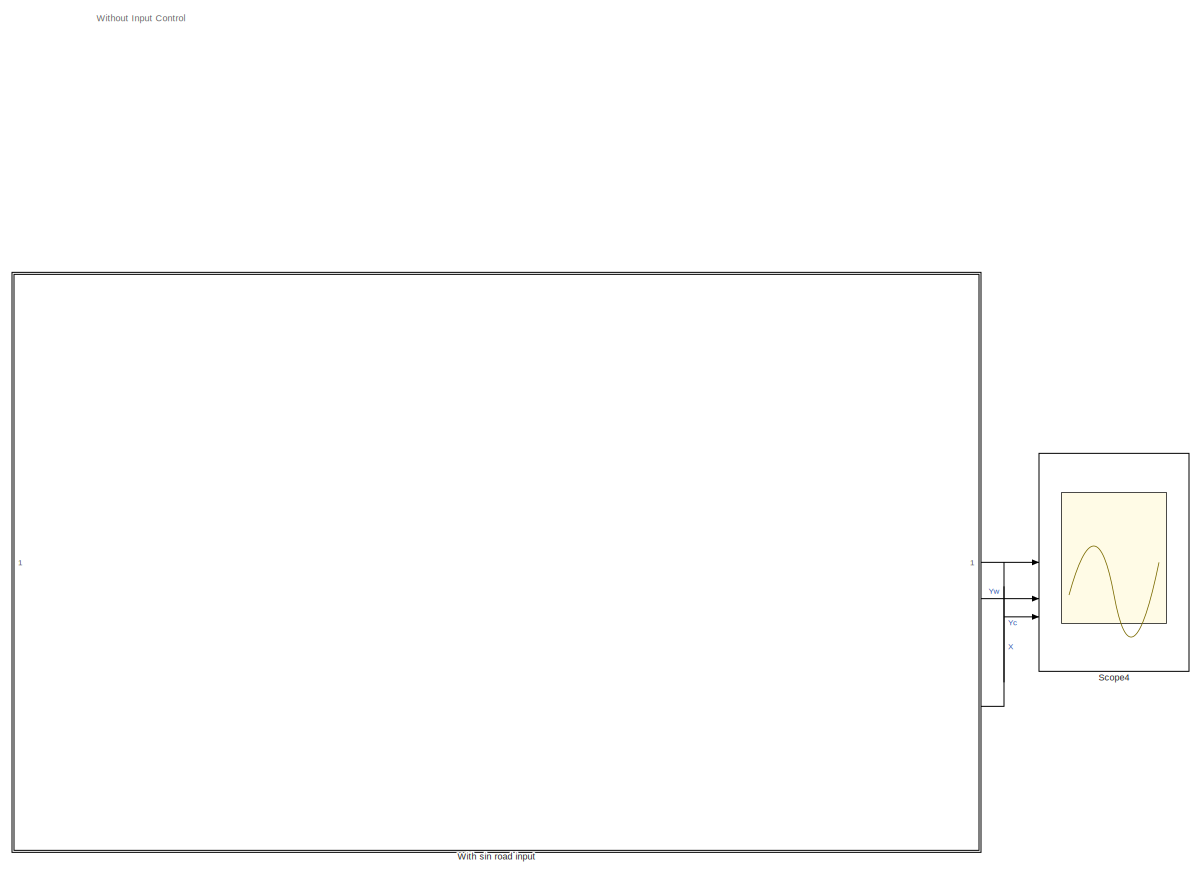
[diagram: root canvas - part 1/13, top center region]
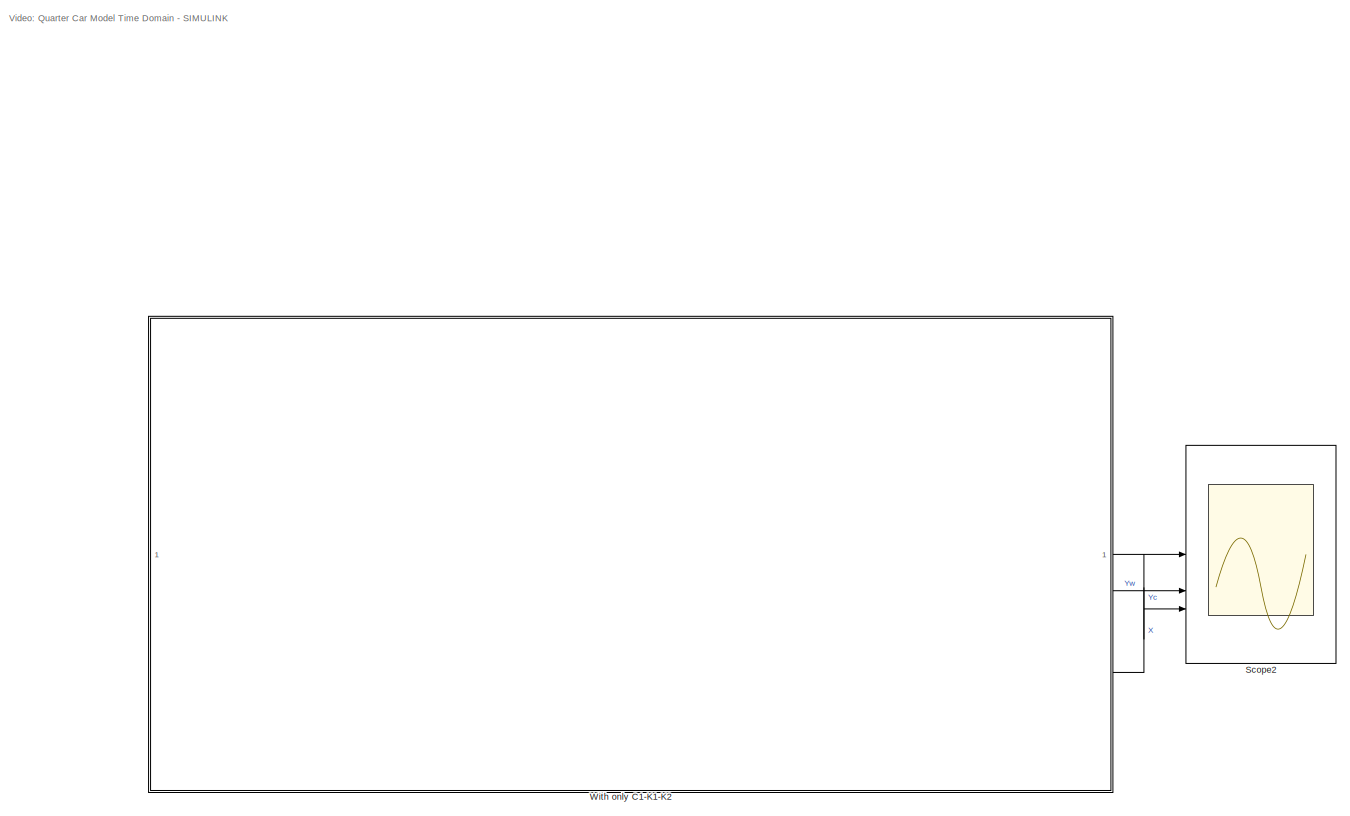
[diagram: root canvas - part 2/13, top left region]
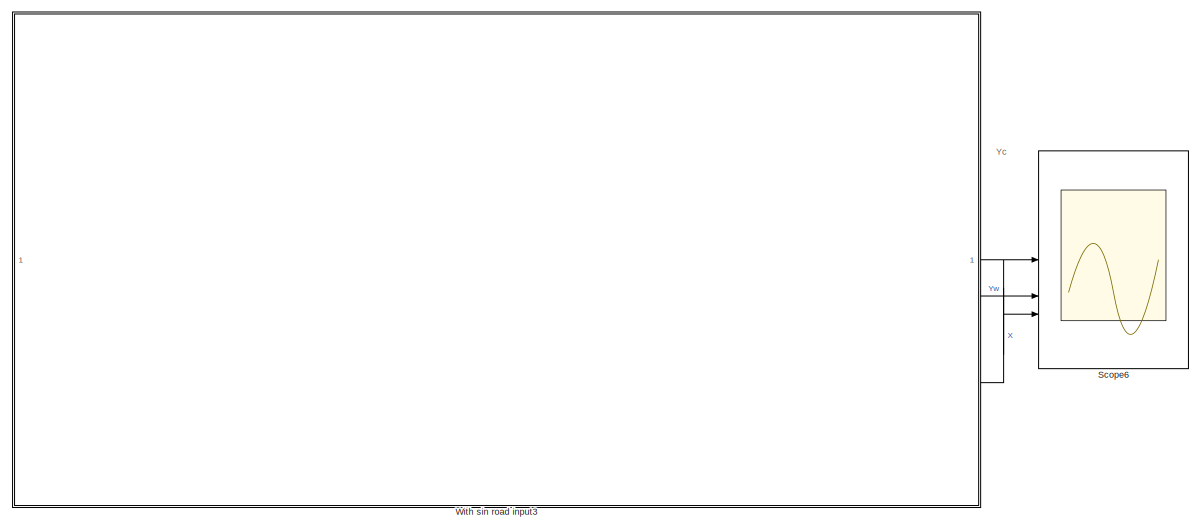
[diagram: root canvas - part 3/13, top right region]
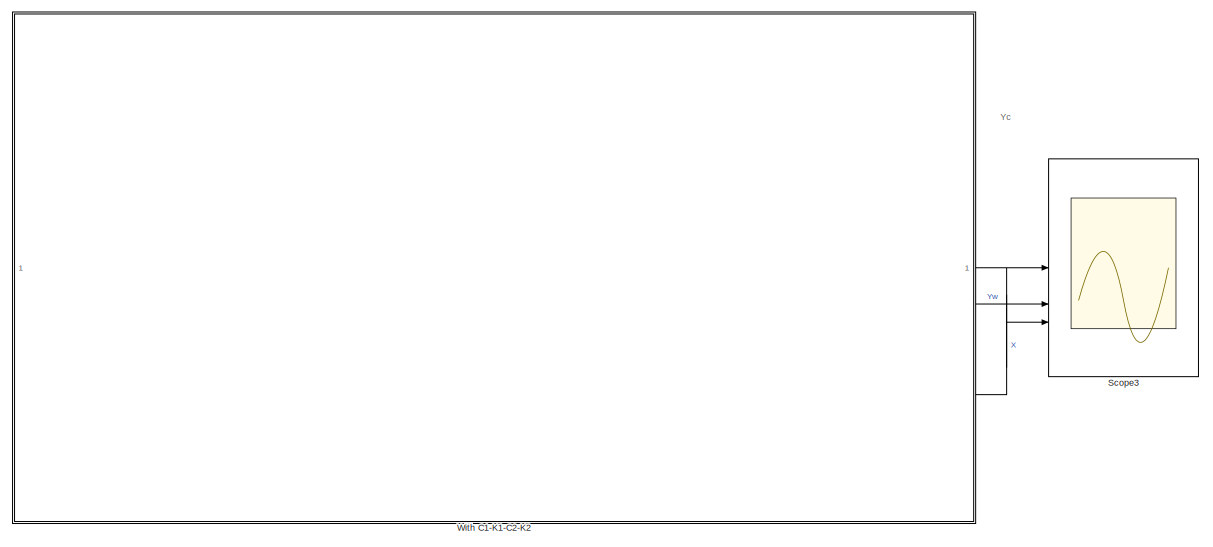
[diagram: root canvas - part 4/13, middle left region]
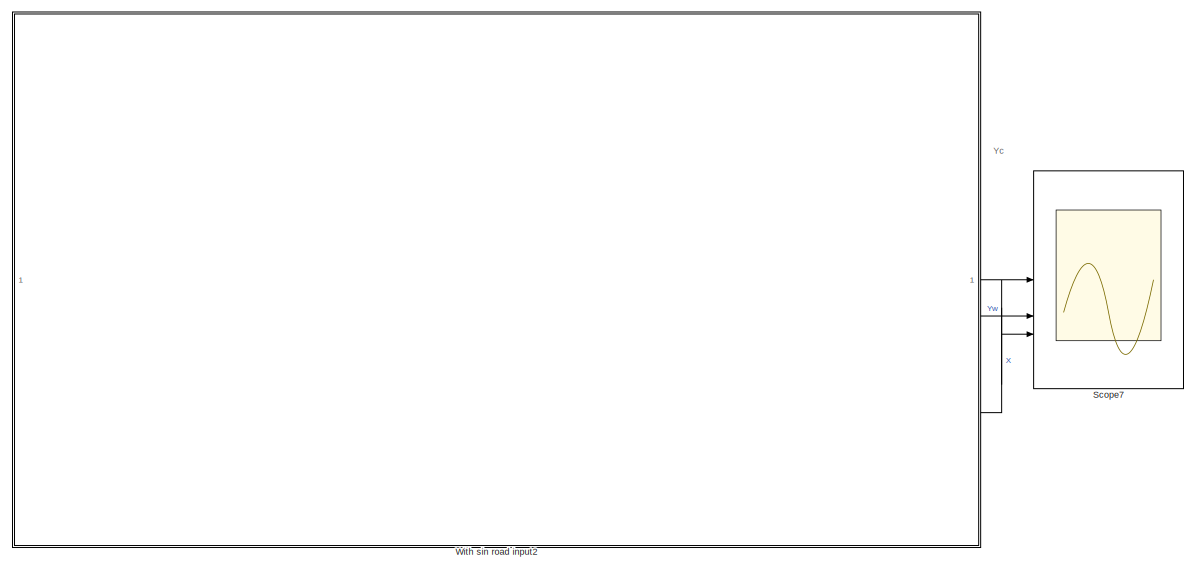
[diagram: root canvas - part 5/13, middle right region]
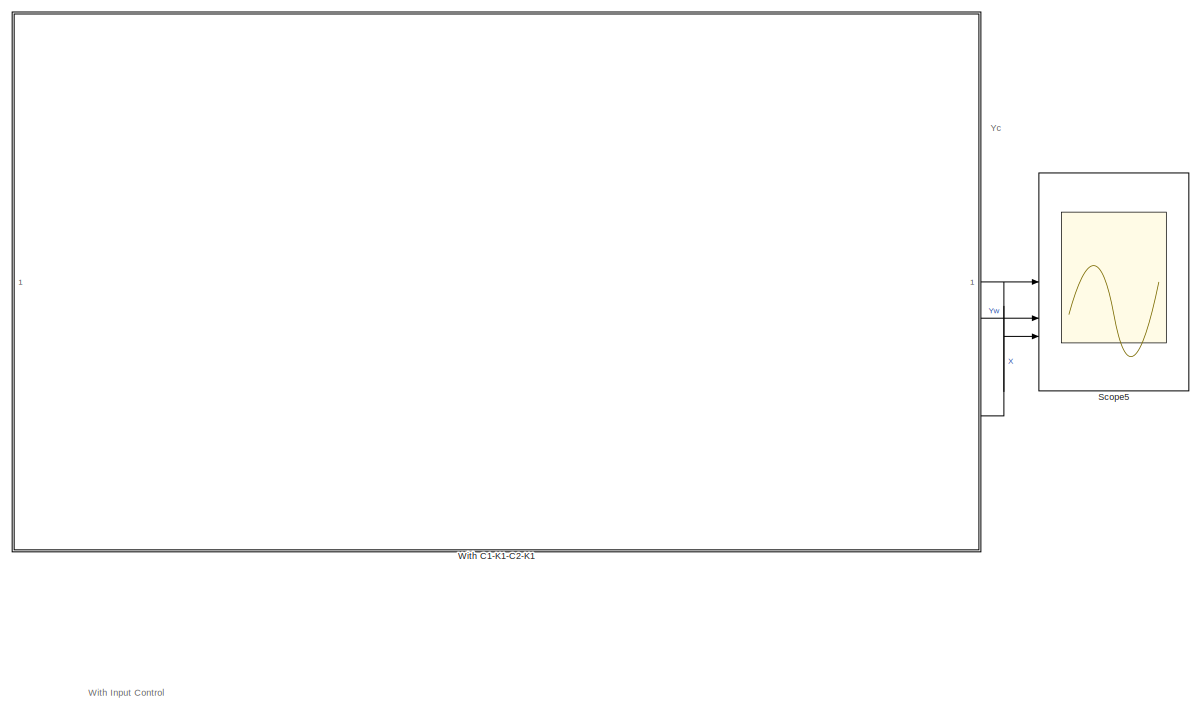
[diagram: root canvas - part 6/13, central region]
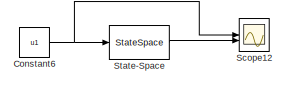
[diagram: root canvas - part 7/13, middle right region]
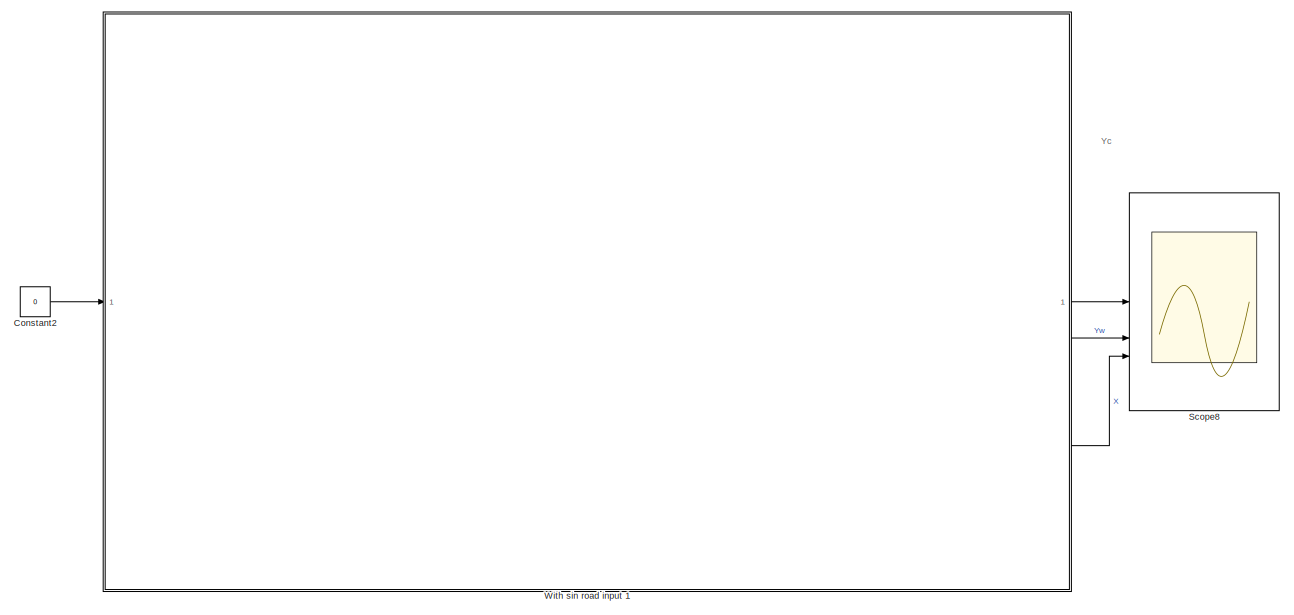
[diagram: root canvas - part 8/13, bottom center region]
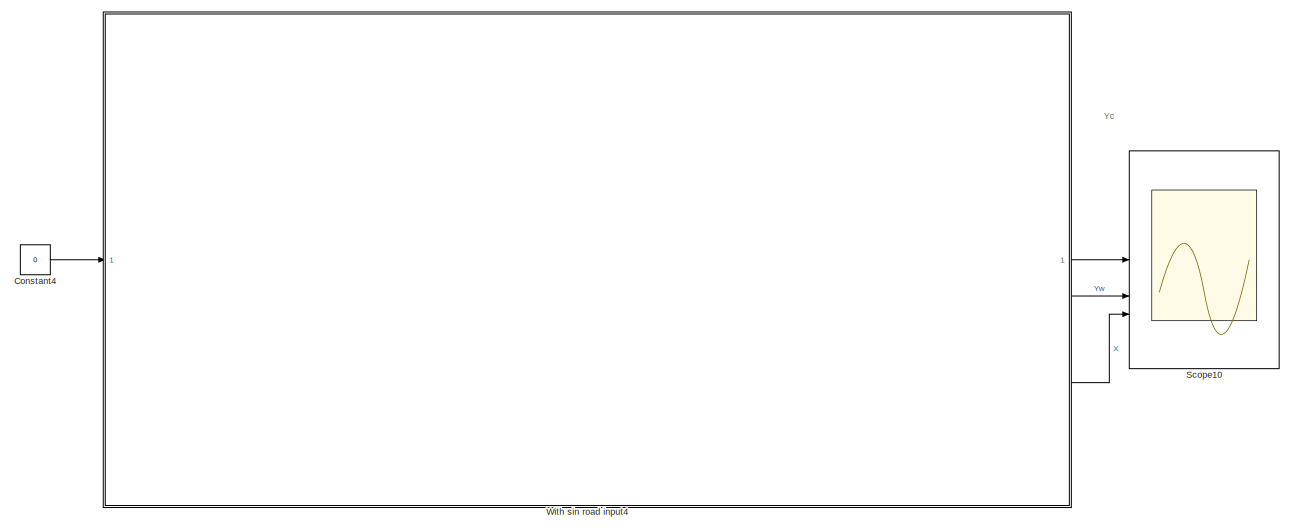
[diagram: root canvas - part 9/13, bottom right region]
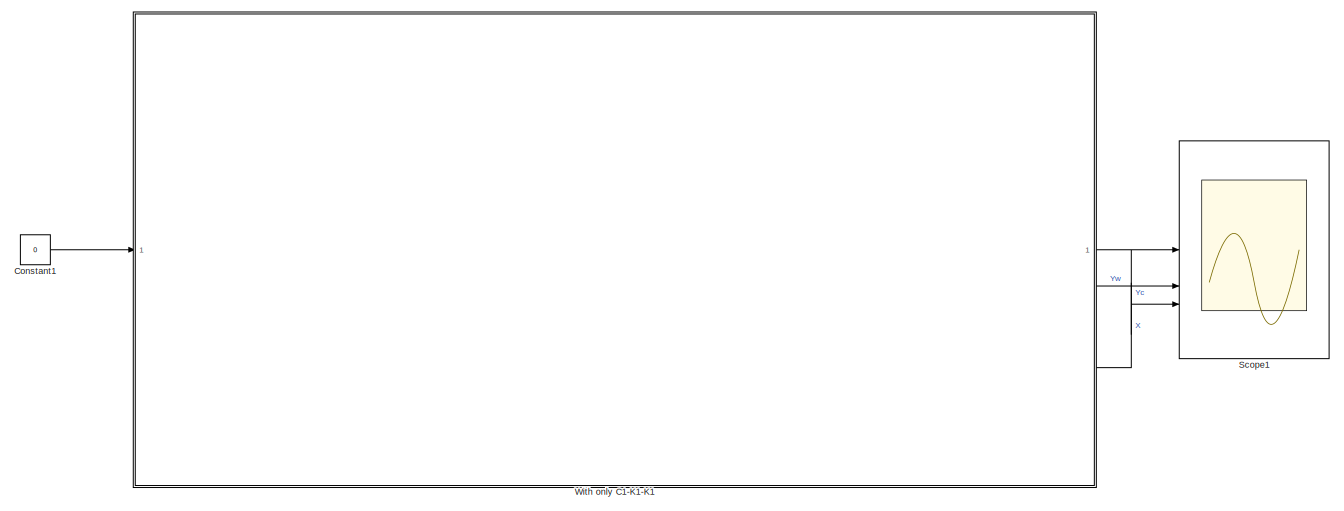
[diagram: root canvas - part 10/13, bottom left region]
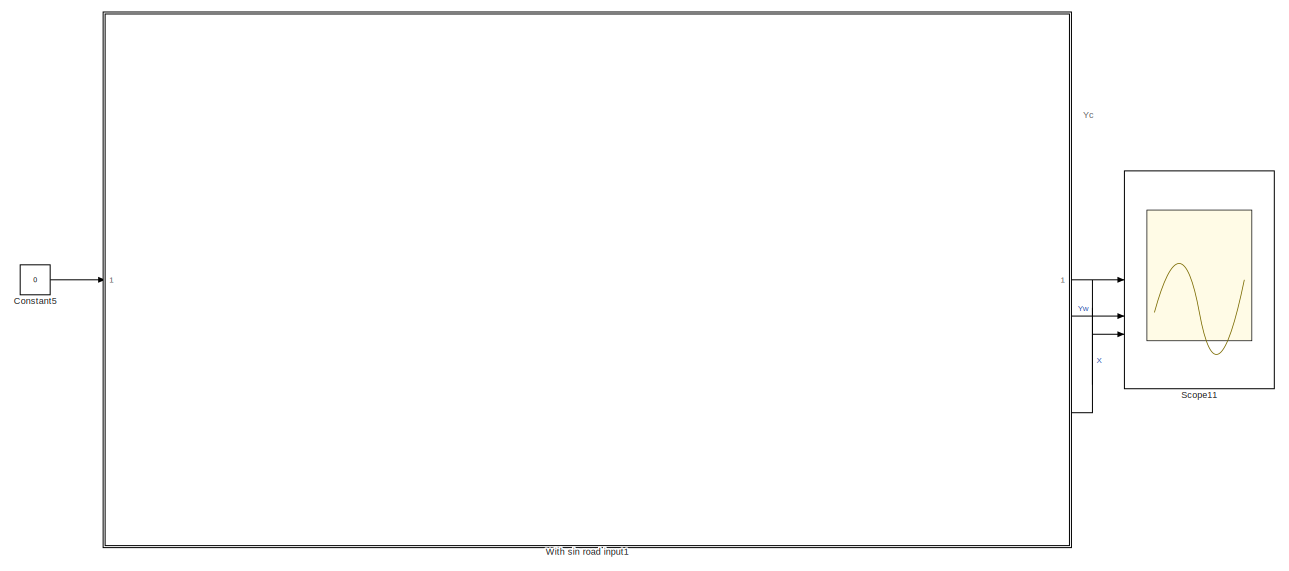
[diagram: root canvas - part 11/13, bottom right region]
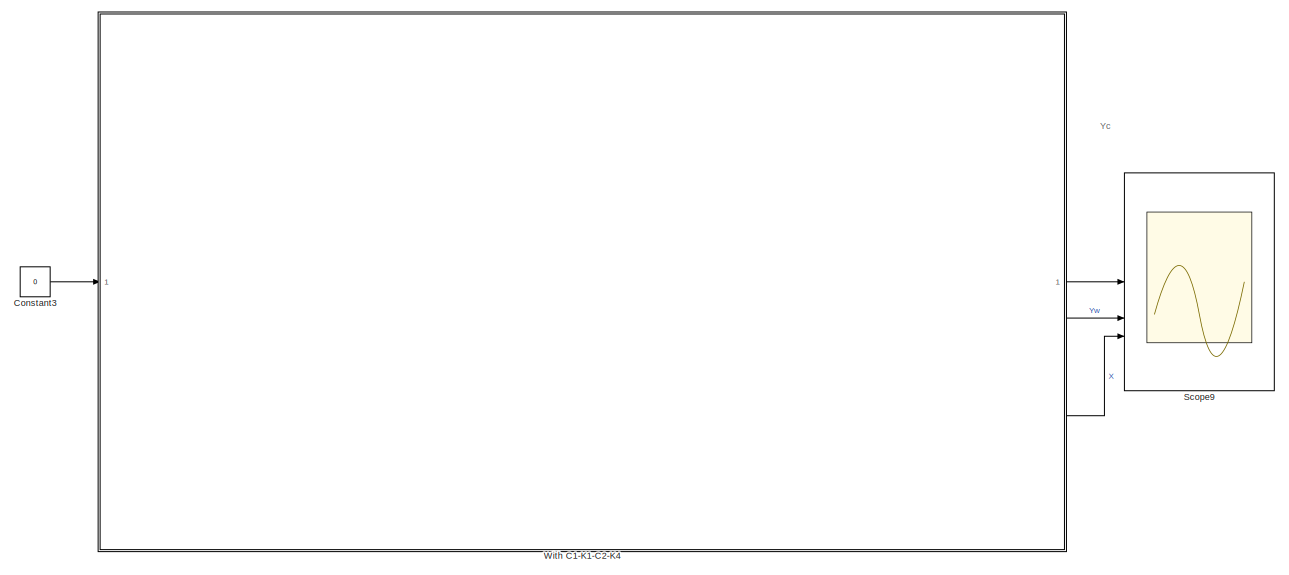
[diagram: root canvas - part 12/13, bottom center region]
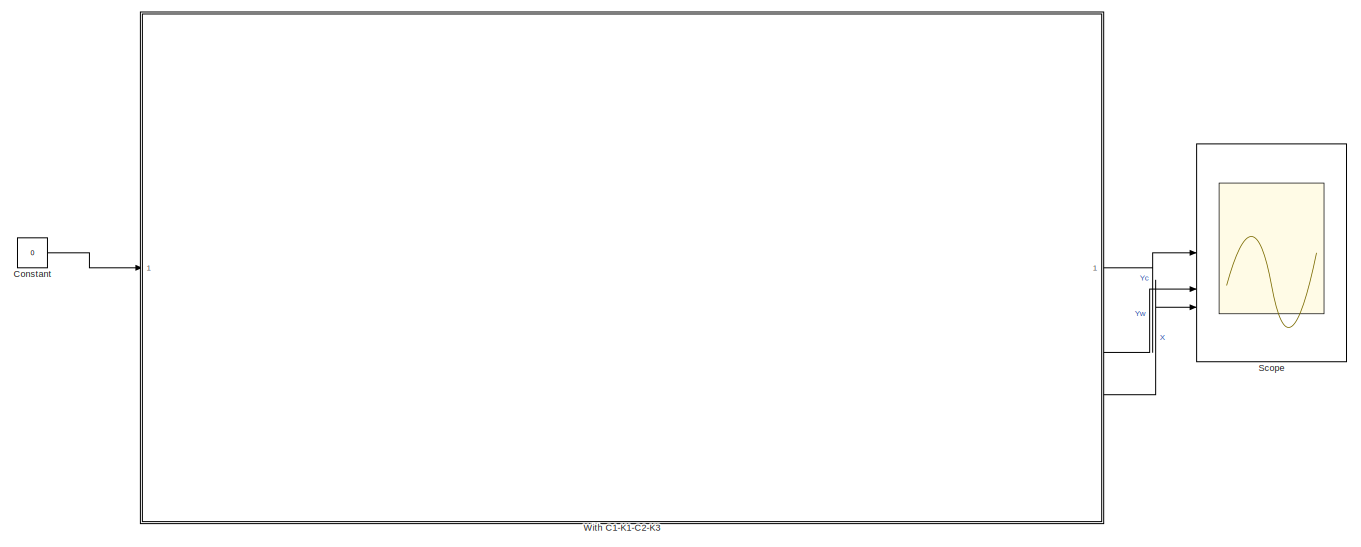
[diagram: root canvas - part 13/13, bottom left region]
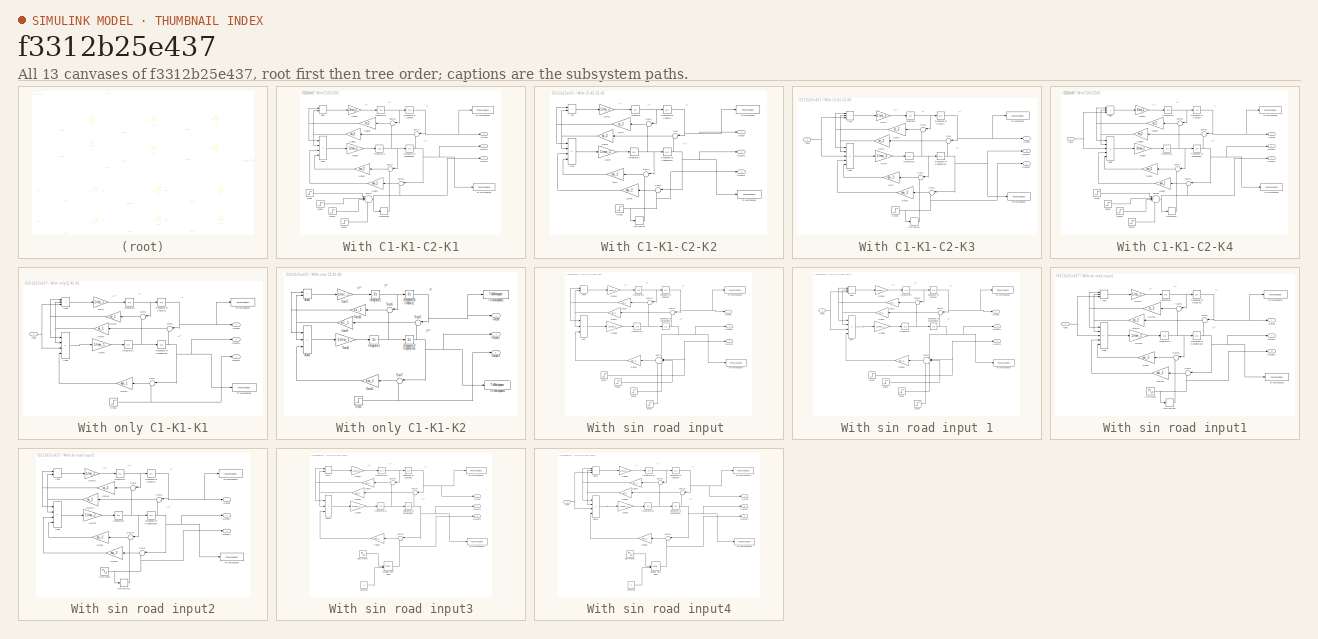
[diagram: thumbnail index - all 13 canvases of the model, root first then tree order]
MODEL slx_f3312b25e437
KIND model
CONFIG AbsTol = auto
CONFIG EnableMultiTasking = off
CONFIG FixedStep = auto
CONFIG MaxStep = 1e-4
CONFIG MinStep = auto
CONFIG RelTol = 1e-3
CONFIG SampleTimeConstraint = Unconstrained
CONFIG SolverName = VariableStepAuto
CONFIG StartTime = 0.0
CONFIG StopTime = 40.0
BLOCK [Constant] Constant
  Value = 0
BLOCK [Constant] Constant1
  Value = 0
BLOCK [Constant] Constant2
  Value = 0
BLOCK [Constant] Constant3
  Value = 0
BLOCK [Constant] Constant4
  Value = 0
BLOCK [Constant] Constant5
  Value = 0
BLOCK [Constant] Constant6
  Value = u1
BLOCK [Scope] Scope
  Floating = off
  NumInputPorts = 3
  ScopeSpecificationString = Simulink.scopes.TimeScopeBlockCfg('CurrentConfiguration', extmgr.ConfigurationSet(extmgr.Configuration('Core','General UI',true),extmgr.Configuration('Core','Source UI',true),extmgr.Configuration('Sources','WiredSimulink',true,'DataLoggingVariableName','ScopeData8'),extmgr.Configuration('Visuals','Time Domain',true,'SerializedDisplays',{struct('MinYLimReal','-5.56389','MaxYLimReal','50.07499','YLa...<+1461ch>
BLOCK [Scope] Scope1
  Floating = off
  NumInputPorts = 3
  ScopeSpecificationString = Simulink.scopes.TimeScopeBlockCfg('CurrentConfiguration', extmgr.ConfigurationSet(extmgr.Configuration('Core','General UI',true),extmgr.Configuration('Core','Source UI',true),extmgr.Configuration('Sources','WiredSimulink',true,'DataLoggingVariableName','ScopeData9'),extmgr.Configuration('Visuals','Time Domain',true,'SerializedDisplays',{struct('MinYLimReal','-5.92859','MaxYLimReal','53.35733','YLa...<+1399ch>
BLOCK [Scope] Scope10
  Floating = off
  NumInputPorts = 3
  ScopeSpecificationString = Simulink.scopes.TimeScopeBlockCfg('CurrentConfiguration', extmgr.ConfigurationSet(extmgr.Configuration('Core','General UI',true),extmgr.Configuration('Core','Source UI',true),extmgr.Configuration('Sources','WiredSimulink',true,'DataLoggingVariableName','ScopeData2'),extmgr.Configuration('Visuals','Time Domain',true,'SerializedDisplays',{struct('MinYLimReal','-1.00000','MaxYLimReal','1.00000','YLab...<+1495ch>
BLOCK [Scope] Scope11
  Floating = off
  NumInputPorts = 3
  ScopeSpecificationString = Simulink.scopes.TimeScopeBlockCfg('CurrentConfiguration', extmgr.ConfigurationSet(extmgr.Configuration('Core','General UI',true),extmgr.Configuration('Core','Source UI',true),extmgr.Configuration('Sources','WiredSimulink',true,'DataLoggingVariableName','ScopeData3'),extmgr.Configuration('Visuals','Time Domain',true,'SerializedDisplays',{struct('MinYLimReal','-1.00000','MaxYLimReal','1.00000','YLab...<+1495ch>
BLOCK [Scope] Scope12
  Floating = off
  NumInputPorts = 2
  ScopeSpecificationString = Simulink.scopes.TimeScopeBlockCfg('CurrentConfiguration', extmgr.ConfigurationSet(extmgr.Configuration('Core','General UI',true),extmgr.Configuration('Core','Source UI',true),extmgr.Configuration('Sources','WiredSimulink',true,'DataLoggingVariableName','ScopeData4'),extmgr.Configuration('Visuals','Time Domain',true,'SerializedDisplays',{struct('MinYLimReal','-0.00112','MaxYLimReal','0.0345','YLabe...<+1537ch>
BLOCK [Scope] Scope2
  Floating = off
  NumInputPorts = 3
  ScopeSpecificationString = Simulink.scopes.TimeScopeBlockCfg('CurrentConfiguration', extmgr.ConfigurationSet(extmgr.Configuration('Core','General UI',true),extmgr.Configuration('Core','Source UI',true),extmgr.Configuration('Sources','WiredSimulink',true,'DataLoggingVariableName','ScopeData10'),extmgr.Configuration('Visuals','Time Domain',true,'SerializedDisplays',{struct('MinYLimReal','-1.00000','MaxYLimReal','1.00000','YLa...<+1476ch>
BLOCK [Scope] Scope3
  Floating = off
  NumInputPorts = 3
  ScopeSpecificationString = Simulink.scopes.TimeScopeBlockCfg('CurrentConfiguration', extmgr.ConfigurationSet(extmgr.Configuration('Core','General UI',true),extmgr.Configuration('Core','Source UI',true),extmgr.Configuration('Sources','WiredSimulink',true,'DataLoggingVariableName','ScopeData11'),extmgr.Configuration('Visuals','Time Domain',true,'SerializedDisplays',{struct('MinYLimReal','-1.00000','MaxYLimReal','1.00000','YLa...<+1492ch>
BLOCK [Scope] Scope4
  Floating = off
  NumInputPorts = 3
  ScopeSpecificationString = Simulink.scopes.TimeScopeBlockCfg('CurrentConfiguration', extmgr.ConfigurationSet(extmgr.Configuration('Core','General UI',true),extmgr.Configuration('Core','Source UI',true),extmgr.Configuration('Sources','WiredSimulink',true,'DataLoggingVariableName','ScopeData12'),extmgr.Configuration('Visuals','Time Domain',true,'SerializedDisplays',{struct('MinYLimReal','-1.00000','MaxYLimReal','1.00000','YLa...<+1476ch>
BLOCK [Scope] Scope5
  Floating = off
  NumInputPorts = 3
  ScopeSpecificationString = Simulink.scopes.TimeScopeBlockCfg('CurrentConfiguration', extmgr.ConfigurationSet(extmgr.Configuration('Core','General UI',true),extmgr.Configuration('Core','Source UI',true),extmgr.Configuration('Sources','WiredSimulink',true,'DataLoggingVariableName','ScopeData13'),extmgr.Configuration('Visuals','Time Domain',true,'SerializedDisplays',{struct('MinYLimReal','-1.00000','MaxYLimReal','1.00000','YLa...<+1492ch>
BLOCK [Scope] Scope6
  Floating = off
  NumInputPorts = 3
  ScopeSpecificationString = Simulink.scopes.TimeScopeBlockCfg('CurrentConfiguration', extmgr.ConfigurationSet(extmgr.Configuration('Core','General UI',true),extmgr.Configuration('Core','Source UI',true),extmgr.Configuration('Sources','WiredSimulink',true,'DataLoggingVariableName','ScopeData14'),extmgr.Configuration('Visuals','Time Domain',true,'SerializedDisplays',{struct('MinYLimReal','-1.00000','MaxYLimReal','1.00000','YLa...<+1496ch>
BLOCK [Scope] Scope7
  Floating = off
  NumInputPorts = 3
  ScopeSpecificationString = Simulink.scopes.TimeScopeBlockCfg('CurrentConfiguration', extmgr.ConfigurationSet(extmgr.Configuration('Core','General UI',true),extmgr.Configuration('Core','Source UI',true),extmgr.Configuration('Sources','WiredSimulink',true,'DataLoggingVariableName','ScopeData15'),extmgr.Configuration('Visuals','Time Domain',true,'SerializedDisplays',{struct('MinYLimReal','-1.00000','MaxYLimReal','1.00000','YLa...<+1496ch>
BLOCK [Scope] Scope8
  Floating = off
  NumInputPorts = 3
  ScopeSpecificationString = Simulink.scopes.TimeScopeBlockCfg('CurrentConfiguration', extmgr.ConfigurationSet(extmgr.Configuration('Core','General UI',true),extmgr.Configuration('Core','Source UI',true),extmgr.Configuration('Sources','WiredSimulink',true),extmgr.Configuration('Visuals','Time Domain',true,'SerializedDisplays',{struct('MinYLimReal','-1.00000','MaxYLimReal','1.00000','YLabelReal','','MinYLimMag','0.00000','MaxY...<+1457ch>
BLOCK [Scope] Scope9
  Floating = off
  NumInputPorts = 3
  ScopeSpecificationString = Simulink.scopes.TimeScopeBlockCfg('CurrentConfiguration', extmgr.ConfigurationSet(extmgr.Configuration('Core','General UI',true),extmgr.Configuration('Core','Source UI',true),extmgr.Configuration('Sources','WiredSimulink',true,'DataLoggingVariableName','ScopeData1'),extmgr.Configuration('Visuals','Time Domain',true,'SerializedDisplays',{struct('MinYLimReal','-1.00000','MaxYLimReal','1.00000','YLab...<+1491ch>
BLOCK [StateSpace] State-Space
  A = A
  B = B
  C = C
  D = D
  InitialCondition = 0
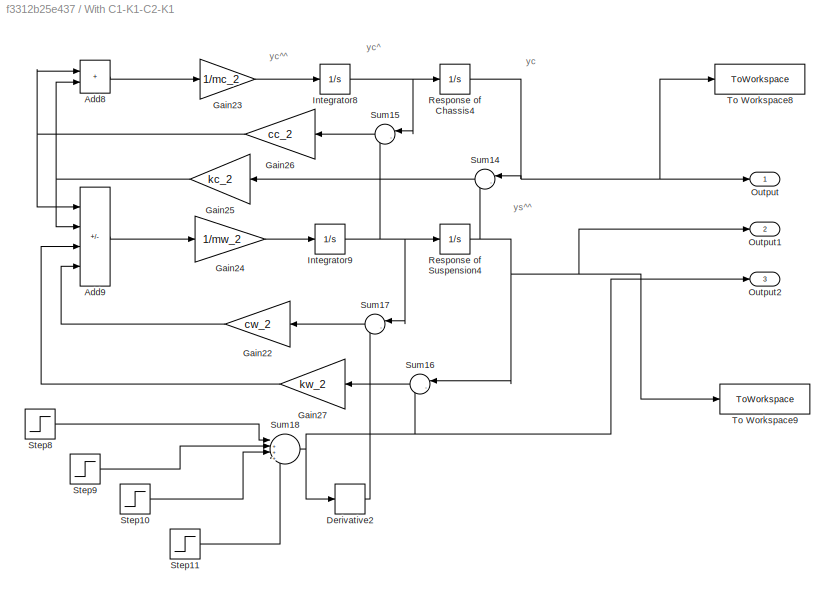
BLOCK [SubSystem] With C1-K1-C2-K1
BLOCK [Sum] With C1-K1-C2-K1/Add8
  IconShape = rectangular
BLOCK [Sum] With C1-K1-C2-K1/Add9
  IconShape = rectangular
  Inputs = --++
BLOCK [Derivative] With C1-K1-C2-K1/Derivative2
BLOCK [Gain] With C1-K1-C2-K1/Gain22
  Gain = cw_2
  NameLocation = top
BLOCK [Gain] With C1-K1-C2-K1/Gain23
  Gain = 1/mc_2
BLOCK [Gain] With C1-K1-C2-K1/Gain24
  Gain = 1/mw_2
BLOCK [Gain] With C1-K1-C2-K1/Gain25
  Gain = kc_2
  NameLocation = top
BLOCK [Gain] With C1-K1-C2-K1/Gain26
  Gain = cc_2
  NameLocation = top
BLOCK [Gain] With C1-K1-C2-K1/Gain27
  Gain = kw_2
  NameLocation = top
BLOCK [Integrator] With C1-K1-C2-K1/Integrator8
BLOCK [Integrator] With C1-K1-C2-K1/Integrator9
BLOCK [Outport] With C1-K1-C2-K1/Output
BLOCK [Outport] With C1-K1-C2-K1/Output1
  Port = 2
BLOCK [Outport] With C1-K1-C2-K1/Output2
  Port = 3
BLOCK [Integrator] With C1-K1-C2-K1/Response of Chassis4
BLOCK [Integrator] With C1-K1-C2-K1/Response of Suspension4
BLOCK [Step] With C1-K1-C2-K1/Step10
  After = -10
  SampleTime = 0
  Time = 15
BLOCK [Step] With C1-K1-C2-K1/Step11
  After = 5
  SampleTime = 0
  Time = 20
BLOCK [Step] With C1-K1-C2-K1/Step8
  After = 10
  SampleTime = 0
  Time = 5
BLOCK [Step] With C1-K1-C2-K1/Step9
  After = 20
  SampleTime = 0
  Time = 10
BLOCK [Sum] With C1-K1-C2-K1/Sum14
  Inputs = |-+
  NameLocation = top
BLOCK [Sum] With C1-K1-C2-K1/Sum15
  Inputs = |-+
  NameLocation = top
BLOCK [Sum] With C1-K1-C2-K1/Sum16
  Inputs = |-+
  NameLocation = top
BLOCK [Sum] With C1-K1-C2-K1/Sum17
  Inputs = |-+
  NameLocation = top
BLOCK [Sum] With C1-K1-C2-K1/Sum18
  Inputs = |++++
BLOCK [ToWorkspace] With C1-K1-C2-K1/To Workspace8
  FixptAsFi = on
  MaxDataPoints = inf
  SampleTime = -1
  SaveFormat = Timeseries
  VariableName = Yc_
BLOCK [ToWorkspace] With C1-K1-C2-K1/To Workspace9
  FixptAsFi = on
  MaxDataPoints = inf
  SampleTime = -1
  SaveFormat = Timeseries
  VariableName = Yw_
BLOCK [SubSystem] With C1-K1-C2-K2
BLOCK [Sum] With C1-K1-C2-K2/Add
  IconShape = rectangular
BLOCK [Sum] With C1-K1-C2-K2/Add1
  IconShape = rectangular
  Inputs = --++
BLOCK [Derivative] With C1-K1-C2-K2/Derivative
BLOCK [Gain] With C1-K1-C2-K2/Gain
  Gain = cw_2
  NameLocation = top
BLOCK [Gain] With C1-K1-C2-K2/Gain1
  Gain = 1/mc_2
BLOCK [Gain] With C1-K1-C2-K2/Gain2
  Gain = 1/mw_2
BLOCK [Gain] With C1-K1-C2-K2/Gain3
  Gain = kc_2
  NameLocation = top
BLOCK [Gain] With C1-K1-C2-K2/Gain4
  Gain = cc_2
  NameLocation = top
BLOCK [Gain] With C1-K1-C2-K2/Gain5
  Gain = kw_2
  NameLocation = top
BLOCK [Integrator] With C1-K1-C2-K2/Integrator
BLOCK [Integrator] With C1-K1-C2-K2/Integrator2
BLOCK [Outport] With C1-K1-C2-K2/Output
BLOCK [Outport] With C1-K1-C2-K2/Output1
  Port = 2
BLOCK [Outport] With C1-K1-C2-K2/Output2
  Port = 3
BLOCK [Integrator] With C1-K1-C2-K2/Response of Chassis
BLOCK [Integrator] With C1-K1-C2-K2/Response of Suspension
BLOCK [Step] With C1-K1-C2-K2/Step2
  After = 30
  SampleTime = 0
BLOCK [Sum] With C1-K1-C2-K2/Sum
  Inputs = |-+
  NameLocation = top
BLOCK [Sum] With C1-K1-C2-K2/Sum1
  Inputs = |-+
  NameLocation = top
BLOCK [Sum] With C1-K1-C2-K2/Sum2
  Inputs = |-+
  NameLocation = top
BLOCK [Sum] With C1-K1-C2-K2/Sum4
  Inputs = |-+
  NameLocation = top
BLOCK [ToWorkspace] With C1-K1-C2-K2/To Workspace
  FixptAsFi = on
  MaxDataPoints = inf
  SampleTime = -1
  SaveFormat = Timeseries
  VariableName = Yc_2
BLOCK [ToWorkspace] With C1-K1-C2-K2/To Workspace1
  FixptAsFi = on
  MaxDataPoints = inf
  SampleTime = -1
  SaveFormat = Timeseries
  VariableName = Yw_2
BLOCK [SubSystem] With C1-K1-C2-K3
  Commented = on
BLOCK [Sum] With C1-K1-C2-K3/Add
  IconShape = rectangular
  Inputs = +++
BLOCK [Sum] With C1-K1-C2-K3/Add1
  IconShape = rectangular
  Inputs = ---++
BLOCK [Derivative] With C1-K1-C2-K3/Derivative
BLOCK [Gain] With C1-K1-C2-K3/Gain
  Gain = cw_2
  NameLocation = top
BLOCK [Gain] With C1-K1-C2-K3/Gain1
  Gain = 1/mc_2
BLOCK [Gain] With C1-K1-C2-K3/Gain2
  Gain = 1/mw_2
BLOCK [Gain] With C1-K1-C2-K3/Gain3
  Gain = kc_2
  NameLocation = top
BLOCK [Gain] With C1-K1-C2-K3/Gain4
  Gain = cc_2
  NameLocation = top
BLOCK [Gain] With C1-K1-C2-K3/Gain5
  Gain = kw_2
  NameLocation = top
BLOCK [Inport] With C1-K1-C2-K3/Input
BLOCK [Integrator] With C1-K1-C2-K3/Integrator
BLOCK [Integrator] With C1-K1-C2-K3/Integrator2
BLOCK [Outport] With C1-K1-C2-K3/Output
BLOCK [Outport] With C1-K1-C2-K3/Output1
  Port = 2
BLOCK [Outport] With C1-K1-C2-K3/Output2
  Port = 3
BLOCK [Integrator] With C1-K1-C2-K3/Response of Chassis
BLOCK [Integrator] With C1-K1-C2-K3/Response of Suspension
BLOCK [Step] With C1-K1-C2-K3/Step2
  After = 30
  SampleTime = 0
BLOCK [Sum] With C1-K1-C2-K3/Sum
  Inputs = |-+
  NameLocation = top
BLOCK [Sum] With C1-K1-C2-K3/Sum1
  Inputs = |-+
  NameLocation = top
BLOCK [Sum] With C1-K1-C2-K3/Sum2
  Inputs = |-+
  NameLocation = top
BLOCK [Sum] With C1-K1-C2-K3/Sum4
  Inputs = |-+
  NameLocation = top
BLOCK [ToWorkspace] With C1-K1-C2-K3/To Workspace
  FixptAsFi = on
  MaxDataPoints = inf
  SampleTime = -1
  SaveFormat = Timeseries
  VariableName = Yc_2
BLOCK [ToWorkspace] With C1-K1-C2-K3/To Workspace1
  FixptAsFi = on
  MaxDataPoints = inf
  SampleTime = -1
  SaveFormat = Timeseries
  VariableName = Yw_2
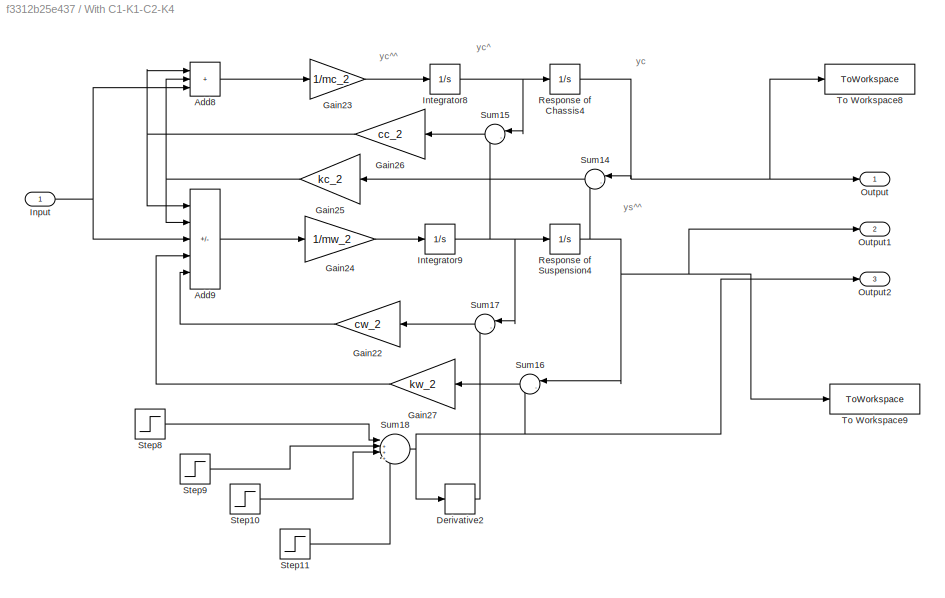
BLOCK [SubSystem] With C1-K1-C2-K4
  Commented = on
BLOCK [Sum] With C1-K1-C2-K4/Add8
  IconShape = rectangular
  Inputs = +++
BLOCK [Sum] With C1-K1-C2-K4/Add9
  IconShape = rectangular
  Inputs = ---++
BLOCK [Derivative] With C1-K1-C2-K4/Derivative2
BLOCK [Gain] With C1-K1-C2-K4/Gain22
  Gain = cw_2
  NameLocation = top
BLOCK [Gain] With C1-K1-C2-K4/Gain23
  Gain = 1/mc_2
BLOCK [Gain] With C1-K1-C2-K4/Gain24
  Gain = 1/mw_2
BLOCK [Gain] With C1-K1-C2-K4/Gain25
  Gain = kc_2
  NameLocation = top
BLOCK [Gain] With C1-K1-C2-K4/Gain26
  Gain = cc_2
  NameLocation = top
BLOCK [Gain] With C1-K1-C2-K4/Gain27
  Gain = kw_2
  NameLocation = top
BLOCK [Inport] With C1-K1-C2-K4/Input
BLOCK [Integrator] With C1-K1-C2-K4/Integrator8
BLOCK [Integrator] With C1-K1-C2-K4/Integrator9
BLOCK [Outport] With C1-K1-C2-K4/Output
BLOCK [Outport] With C1-K1-C2-K4/Output1
  Port = 2
BLOCK [Outport] With C1-K1-C2-K4/Output2
  Port = 3
BLOCK [Integrator] With C1-K1-C2-K4/Response of Chassis4
BLOCK [Integrator] With C1-K1-C2-K4/Response of Suspension4
BLOCK [Step] With C1-K1-C2-K4/Step10
  After = -10
  SampleTime = 0
  Time = 15
BLOCK [Step] With C1-K1-C2-K4/Step11
  After = 5
  SampleTime = 0
  Time = 20
BLOCK [Step] With C1-K1-C2-K4/Step8
  After = 10
  SampleTime = 0
  Time = 5
BLOCK [Step] With C1-K1-C2-K4/Step9
  After = 20
  SampleTime = 0
  Time = 10
BLOCK [Sum] With C1-K1-C2-K4/Sum14
  Inputs = |-+
  NameLocation = top
BLOCK [Sum] With C1-K1-C2-K4/Sum15
  Inputs = |-+
  NameLocation = top
BLOCK [Sum] With C1-K1-C2-K4/Sum16
  Inputs = |-+
  NameLocation = top
BLOCK [Sum] With C1-K1-C2-K4/Sum17
  Inputs = |-+
  NameLocation = top
BLOCK [Sum] With C1-K1-C2-K4/Sum18
  Inputs = |++++
BLOCK [ToWorkspace] With C1-K1-C2-K4/To Workspace8
  FixptAsFi = on
  MaxDataPoints = inf
  SampleTime = -1
  SaveFormat = Timeseries
  VariableName = Yc_
BLOCK [ToWorkspace] With C1-K1-C2-K4/To Workspace9
  FixptAsFi = on
  MaxDataPoints = inf
  SampleTime = -1
  SaveFormat = Timeseries
  VariableName = Yw_
BLOCK [SubSystem] With only C1-K1-K1
  Commented = on
BLOCK [Sum] With only C1-K1-K1/Add2
  IconShape = rectangular
  Inputs = +++
BLOCK [Sum] With only C1-K1-K1/Add3
  IconShape = rectangular
  Inputs = ---+
BLOCK [Gain] With only C1-K1-K1/Gain10
  Gain = cc_1
  NameLocation = top
BLOCK [Gain] With only C1-K1-K1/Gain11
  Gain = kw_1
  NameLocation = top
BLOCK [Gain] With only C1-K1-K1/Gain7
  Gain = 1/mc_1
BLOCK [Gain] With only C1-K1-K1/Gain8
  Gain = 1/mw_1
BLOCK [Gain] With only C1-K1-K1/Gain9
  Gain = kc_1
  NameLocation = top
BLOCK [Inport] With only C1-K1-K1/Input
BLOCK [Integrator] With only C1-K1-K1/Integrator1
BLOCK [Integrator] With only C1-K1-K1/Integrator3
BLOCK [Outport] With only C1-K1-K1/Output
BLOCK [Outport] With only C1-K1-K1/Output1
  Port = 2
BLOCK [Outport] With only C1-K1-K1/Output2
  Port = 3
BLOCK [Integrator] With only C1-K1-K1/Response of Chassis1
BLOCK [Integrator] With only C1-K1-K1/Response of Suspension1
BLOCK [Step] With only C1-K1-K1/Step1
  After = 30
  SampleTime = 0
BLOCK [Sum] With only C1-K1-K1/Sum5
  Inputs = |-+
  NameLocation = top
BLOCK [Sum] With only C1-K1-K1/Sum6
  Inputs = |-+
  NameLocation = top
BLOCK [Sum] With only C1-K1-K1/Sum7
  Inputs = |-+
  NameLocation = top
BLOCK [ToWorkspace] With only C1-K1-K1/To Workspace2
  FixptAsFi = on
  MaxDataPoints = inf
  SampleTime = -1
  SaveFormat = Timeseries
  VariableName = Yc_1
BLOCK [ToWorkspace] With only C1-K1-K1/To Workspace3
  FixptAsFi = on
  MaxDataPoints = inf
  SampleTime = -1
  SaveFormat = Timeseries
  VariableName = Yw_1
BLOCK [SubSystem] With only C1-K1-K2
BLOCK [Sum] With only C1-K1-K2/Add2
  IconShape = rectangular
BLOCK [Sum] With only C1-K1-K2/Add3
  IconShape = rectangular
  Inputs = --+
BLOCK [Gain] With only C1-K1-K2/Gain10
  Gain = cc_1
  NameLocation = top
BLOCK [Gain] With only C1-K1-K2/Gain11
  Gain = kw_1
  NameLocation = top
BLOCK [Gain] With only C1-K1-K2/Gain7
  Gain = 1/mc_1
BLOCK [Gain] With only C1-K1-K2/Gain8
  Gain = 1/mw_1
BLOCK [Gain] With only C1-K1-K2/Gain9
  Gain = kc_1
  NameLocation = top
BLOCK [Integrator] With only C1-K1-K2/Integrator1
BLOCK [Integrator] With only C1-K1-K2/Integrator3
BLOCK [Outport] With only C1-K1-K2/Output
BLOCK [Outport] With only C1-K1-K2/Output1
  Port = 2
BLOCK [Outport] With only C1-K1-K2/Output2
  Port = 3
BLOCK [Integrator] With only C1-K1-K2/Response of Chassis1
BLOCK [Integrator] With only C1-K1-K2/Response of Suspension1
BLOCK [Step] With only C1-K1-K2/Step1
  After = 30
  SampleTime = 0
BLOCK [Sum] With only C1-K1-K2/Sum5
  Inputs = |-+
  NameLocation = top
BLOCK [Sum] With only C1-K1-K2/Sum6
  Inputs = |-+
  NameLocation = top
BLOCK [Sum] With only C1-K1-K2/Sum7
  Inputs = |-+
  NameLocation = top
BLOCK [ToWorkspace] With only C1-K1-K2/To Workspace2
  FixptAsFi = on
  MaxDataPoints = inf
  SampleTime = -1
  SaveFormat = Timeseries
  VariableName = Yc_1
BLOCK [ToWorkspace] With only C1-K1-K2/To Workspace3
  FixptAsFi = on
  MaxDataPoints = inf
  SampleTime = -1
  SaveFormat = Timeseries
  VariableName = Yw_1
BLOCK [SubSystem] With sin road input 
  Commented = on
BLOCK [Sum] With sin road input /Add6
  IconShape = rectangular
BLOCK [Sum] With sin road input /Add7
  IconShape = rectangular
  Inputs = --+
BLOCK [Gain] With sin road input /Gain17
  Gain = cc_1
  NameLocation = top
BLOCK [Gain] With sin road input /Gain18
  Gain = kw_1
  NameLocation = top
BLOCK [Gain] With sin road input /Gain19
  Gain = 1/mc_1
BLOCK [Gain] With sin road input /Gain20
  Gain = 1/mw_1
BLOCK [Gain] With sin road input /Gain21
  Gain = kc_1
  NameLocation = top
BLOCK [Integrator] With sin road input /Integrator6
BLOCK [Integrator] With sin road input /Integrator7
BLOCK [Outport] With sin road input /Output
BLOCK [Outport] With sin road input /Output1
  Port = 2
BLOCK [Outport] With sin road input /Output2
  Port = 3
BLOCK [Integrator] With sin road input /Response of Chassis3
BLOCK [Integrator] With sin road input /Response of Suspension3
BLOCK [Step] With sin road input /Step3
  After = 10
  SampleTime = 0
  Time = 5
BLOCK [Step] With sin road input /Step5
  After = 20
  SampleTime = 0
  Time = 10
BLOCK [Step] With sin road input /Step6
  After = -10
  SampleTime = 0
  Time = 15
BLOCK [Step] With sin road input /Step7
  After = 5
  SampleTime = 0
  Time = 20
BLOCK [Sum] With sin road input /Sum11
  Inputs = |-+
  NameLocation = top
BLOCK [Sum] With sin road input /Sum12
  Inputs = |-+
  NameLocation = top
BLOCK [Sum] With sin road input /Sum13
  Inputs = |-++++
  NameLocation = top
BLOCK [ToWorkspace] With sin road input /To Workspace6
  FixptAsFi = on
  MaxDataPoints = inf
  SampleTime = -1
  SaveFormat = Timeseries
  VariableName = Yc_3
BLOCK [ToWorkspace] With sin road input /To Workspace7
  FixptAsFi = on
  MaxDataPoints = inf
  SampleTime = -1
  SaveFormat = Timeseries
  VariableName = Yw_3
BLOCK [SubSystem] With sin road input 1
  Commented = on
BLOCK [Sum] With sin road input 1/Add6
  IconShape = rectangular
  Inputs = +++
BLOCK [Sum] With sin road input 1/Add7
  IconShape = rectangular
  Inputs = ---+
BLOCK [Gain] With sin road input 1/Gain17
  Gain = cc_1
  NameLocation = top
BLOCK [Gain] With sin road input 1/Gain18
  Gain = kw_1
  NameLocation = top
BLOCK [Gain] With sin road input 1/Gain19
  Gain = 1/mc_1
BLOCK [Gain] With sin road input 1/Gain20
  Gain = 1/mw_1
BLOCK [Gain] With sin road input 1/Gain21
  Gain = kc_1
  NameLocation = top
BLOCK [Inport] With sin road input 1/Input
BLOCK [Integrator] With sin road input 1/Integrator6
BLOCK [Integrator] With sin road input 1/Integrator7
BLOCK [Outport] With sin road input 1/Output
BLOCK [Outport] With sin road input 1/Output1
  Port = 2
BLOCK [Outport] With sin road input 1/Output2
  Port = 3
BLOCK [Integrator] With sin road input 1/Response of Chassis3
BLOCK [Integrator] With sin road input 1/Response of Suspension3
BLOCK [Step] With sin road input 1/Step3
  After = 10
  SampleTime = 0
  Time = 5
BLOCK [Step] With sin road input 1/Step5
  After = 20
  SampleTime = 0
  Time = 10
BLOCK [Step] With sin road input 1/Step6
  After = -10
  SampleTime = 0
  Time = 15
BLOCK [Step] With sin road input 1/Step7
  After = 5
  SampleTime = 0
  Time = 20
BLOCK [Sum] With sin road input 1/Sum11
  Inputs = |-+
  NameLocation = top
BLOCK [Sum] With sin road input 1/Sum12
  Inputs = |-+
  NameLocation = top
BLOCK [Sum] With sin road input 1/Sum13
  Inputs = |-++++
  NameLocation = top
BLOCK [ToWorkspace] With sin road input 1/To Workspace6
  FixptAsFi = on
  MaxDataPoints = inf
  SampleTime = -1
  SaveFormat = Timeseries
  VariableName = Yc_3
BLOCK [ToWorkspace] With sin road input 1/To Workspace7
  FixptAsFi = on
  MaxDataPoints = inf
  SampleTime = -1
  SaveFormat = Timeseries
  VariableName = Yw_3
BLOCK [SubSystem] With sin road input1
  Commented = on
BLOCK [Sum] With sin road input1/Add4
  IconShape = rectangular
  Inputs = +++
BLOCK [Sum] With sin road input1/Add5
  IconShape = rectangular
  Inputs = ---++
BLOCK [Derivative] With sin road input1/Derivative1
BLOCK [Gain] With sin road input1/Gain12
  Gain = 1/mc_2
BLOCK [Gain] With sin road input1/Gain13
  Gain = 1/mw_2
BLOCK [Gain] With sin road input1/Gain14
  Gain = kc_2
  NameLocation = top
BLOCK [Gain] With sin road input1/Gain15
  Gain = cc_2
  NameLocation = top
BLOCK [Gain] With sin road input1/Gain16
  Gain = kw_2
  NameLocation = top
BLOCK [Gain] With sin road input1/Gain6
  Gain = cw_2
  NameLocation = top
BLOCK [Inport] With sin road input1/Input
BLOCK [Integrator] With sin road input1/Integrator4
BLOCK [Integrator] With sin road input1/Integrator5
BLOCK [Outport] With sin road input1/Output
BLOCK [Outport] With sin road input1/Output1
  Port = 2
BLOCK [Outport] With sin road input1/Output2
  Port = 3
BLOCK [Integrator] With sin road input1/Response of Chassis2
BLOCK [Integrator] With sin road input1/Response of Suspension2
BLOCK [Sin] With sin road input1/Sine Wave
  Amplitude = 30
  Frequency = 0.2
  Phase = 90*pi/360
  SampleTime = 0
BLOCK [Sum] With sin road input1/Sum10
  Inputs = |-+
  NameLocation = top
BLOCK [Sum] With sin road input1/Sum3
  Inputs = |-+
  NameLocation = top
BLOCK [Sum] With sin road input1/Sum8
  Inputs = |-+
  NameLocation = top
BLOCK [Sum] With sin road input1/Sum9
  Inputs = |-+
  NameLocation = top
BLOCK [ToWorkspace] With sin road input1/To Workspace4
  FixptAsFi = on
  MaxDataPoints = inf
  SampleTime = -1
  SaveFormat = Timeseries
  VariableName = Yc_4
BLOCK [ToWorkspace] With sin road input1/To Workspace5
  FixptAsFi = on
  MaxDataPoints = inf
  SampleTime = -1
  SaveFormat = Timeseries
  VariableName = Yw_4
BLOCK [SubSystem] With sin road input2
BLOCK [Sum] With sin road input2/Add4
  IconShape = rectangular
BLOCK [Sum] With sin road input2/Add5
  IconShape = rectangular
  Inputs = --++
BLOCK [Derivative] With sin road input2/Derivative1
BLOCK [Gain] With sin road input2/Gain12
  Gain = 1/mc_2
BLOCK [Gain] With sin road input2/Gain13
  Gain = 1/mw_2
BLOCK [Gain] With sin road input2/Gain14
  Gain = kc_2
  NameLocation = top
BLOCK [Gain] With sin road input2/Gain15
  Gain = cc_2
  NameLocation = top
BLOCK [Gain] With sin road input2/Gain16
  Gain = kw_2
  NameLocation = top
BLOCK [Gain] With sin road input2/Gain6
  Gain = cw_2
  NameLocation = top
BLOCK [Integrator] With sin road input2/Integrator4
BLOCK [Integrator] With sin road input2/Integrator5
BLOCK [Outport] With sin road input2/Output
BLOCK [Outport] With sin road input2/Output1
  Port = 2
BLOCK [Outport] With sin road input2/Output2
  Port = 3
BLOCK [Integrator] With sin road input2/Response of Chassis2
BLOCK [Integrator] With sin road input2/Response of Suspension2
BLOCK [Sin] With sin road input2/Sine Wave
  Amplitude = 30
  Frequency = 0.2
  Phase = 90*pi/360
  SampleTime = 0
BLOCK [Sum] With sin road input2/Sum10
  Inputs = |-+
  NameLocation = top
BLOCK [Sum] With sin road input2/Sum3
  Inputs = |-+
  NameLocation = top
BLOCK [Sum] With sin road input2/Sum8
  Inputs = |-+
  NameLocation = top
BLOCK [Sum] With sin road input2/Sum9
  Inputs = |-+
  NameLocation = top
BLOCK [ToWorkspace] With sin road input2/To Workspace4
  FixptAsFi = on
  MaxDataPoints = inf
  SampleTime = -1
  SaveFormat = Timeseries
  VariableName = Yc_4
BLOCK [ToWorkspace] With sin road input2/To Workspace5
  FixptAsFi = on
  MaxDataPoints = inf
  SampleTime = -1
  SaveFormat = Timeseries
  VariableName = Yw_4
BLOCK [SubSystem] With sin road input3
  Commented = on
BLOCK [Sum] With sin road input3/Add12
  IconShape = rectangular
BLOCK [Sum] With sin road input3/Add13
  IconShape = rectangular
  Inputs = --+
BLOCK [Constant] With sin road input3/Constant
  Value = 5
BLOCK [Gain] With sin road input3/Gain34
  Gain = cc_1
  NameLocation = top
BLOCK [Gain] With sin road input3/Gain35
  Gain = kw_1
  NameLocation = top
BLOCK [Gain] With sin road input3/Gain36
  Gain = 1/mc_1
BLOCK [Gain] With sin road input3/Gain37
  Gain = 1/mw_1
BLOCK [Gain] With sin road input3/Gain38
  Gain = kc_1
  NameLocation = top
BLOCK [Integrator] With sin road input3/Integrator12
BLOCK [Integrator] With sin road input3/Integrator13
BLOCK [Outport] With sin road input3/Output
BLOCK [Outport] With sin road input3/Output1
  Port = 2
BLOCK [Outport] With sin road input3/Output2
  Port = 3
BLOCK [Integrator] With sin road input3/Response of Chassis6
BLOCK [Integrator] With sin road input3/Response of Suspension6
BLOCK [Sin] With sin road input3/Sine Wave1
  Amplitude = 30
  Frequency = 0.2
  SampleTime = 0
BLOCK [Sum] With sin road input3/Sum23
  Inputs = |-+
  NameLocation = top
BLOCK [Sum] With sin road input3/Sum24
  Inputs = |-+
  NameLocation = top
BLOCK [Sum] With sin road input3/Sum25
  Inputs = |-+
  NameLocation = top
BLOCK [ToWorkspace] With sin road input3/To Workspace12
  FixptAsFi = on
  MaxDataPoints = inf
  SampleTime = -1
  SaveFormat = Timeseries
  VariableName = Yc_6
BLOCK [ToWorkspace] With sin road input3/To Workspace13
  FixptAsFi = on
  MaxDataPoints = inf
  SampleTime = -1
  SaveFormat = Timeseries
  VariableName = Yw_6
BLOCK [VariableTransportDelay] With sin road input3/Variable Time Delay
  MaximumDelay = 10
BLOCK [SubSystem] With sin road input4
  Commented = on
BLOCK [Sum] With sin road input4/Add12
  IconShape = rectangular
  Inputs = +++
BLOCK [Sum] With sin road input4/Add13
  IconShape = rectangular
  Inputs = ---+
BLOCK [Constant] With sin road input4/Constant
  Value = 5
BLOCK [Gain] With sin road input4/Gain34
  Gain = cc_1
  NameLocation = top
BLOCK [Gain] With sin road input4/Gain35
  Gain = kw_1
  NameLocation = top
BLOCK [Gain] With sin road input4/Gain36
  Gain = 1/mc_1
BLOCK [Gain] With sin road input4/Gain37
  Gain = 1/mw_1
BLOCK [Gain] With sin road input4/Gain38
  Gain = kc_1
  NameLocation = top
BLOCK [Inport] With sin road input4/Input
BLOCK [Integrator] With sin road input4/Integrator12
BLOCK [Integrator] With sin road input4/Integrator13
BLOCK [Outport] With sin road input4/Output
BLOCK [Outport] With sin road input4/Output1
  Port = 2
BLOCK [Outport] With sin road input4/Output2
  Port = 3
BLOCK [Integrator] With sin road input4/Response of Chassis6
BLOCK [Integrator] With sin road input4/Response of Suspension6
BLOCK [Sin] With sin road input4/Sine Wave1
  Amplitude = 30
  Frequency = 0.2
  SampleTime = 0
BLOCK [Sum] With sin road input4/Sum23
  Inputs = |-+
  NameLocation = top
BLOCK [Sum] With sin road input4/Sum24
  Inputs = |-+
  NameLocation = top
BLOCK [Sum] With sin road input4/Sum25
  Inputs = |-+
  NameLocation = top
BLOCK [ToWorkspace] With sin road input4/To Workspace12
  FixptAsFi = on
  MaxDataPoints = inf
  SampleTime = -1
  SaveFormat = Timeseries
  VariableName = Yc_6
BLOCK [ToWorkspace] With sin road input4/To Workspace13
  FixptAsFi = on
  MaxDataPoints = inf
  SampleTime = -1
  SaveFormat = Timeseries
  VariableName = Yw_6
BLOCK [VariableTransportDelay] With sin road input4/Variable Time Delay
  MaximumDelay = 10
ANNOTATION (root): Video: Quarter Car Model Time Domain - SIMULINK
ANNOTATION (root): With Input Control
ANNOTATION (root): Without Input Control
ANNOTATION (root): Yc
ANNOTATION With C1-K1-C2-K1: yc
ANNOTATION With C1-K1-C2-K1: yc^
ANNOTATION With C1-K1-C2-K1: yc^^
ANNOTATION With C1-K1-C2-K1: ys^^
ANNOTATION With C1-K1-C2-K2: yc
ANNOTATION With C1-K1-C2-K2: yc^
ANNOTATION With C1-K1-C2-K2: yc^^
ANNOTATION With C1-K1-C2-K2: ys^^
ANNOTATION With C1-K1-C2-K3: yc
ANNOTATION With C1-K1-C2-K3: yc^
ANNOTATION With C1-K1-C2-K3: yc^^
ANNOTATION With C1-K1-C2-K3: ys^^
ANNOTATION With C1-K1-C2-K4: yc
ANNOTATION With C1-K1-C2-K4: yc^
ANNOTATION With C1-K1-C2-K4: yc^^
ANNOTATION With C1-K1-C2-K4: ys^^
ANNOTATION With only C1-K1-K1: yc
ANNOTATION With only C1-K1-K1: yc^
ANNOTATION With only C1-K1-K1: yc^^
ANNOTATION With only C1-K1-K1: ys^^
ANNOTATION With only C1-K1-K2: yc
ANNOTATION With only C1-K1-K2: yc^
ANNOTATION With only C1-K1-K2: yc^^
ANNOTATION With only C1-K1-K2: ys^^
ANNOTATION With sin road input : yc
ANNOTATION With sin road input : yc^
ANNOTATION With sin road input : yc^^
ANNOTATION With sin road input : ys^^
ANNOTATION With sin road input 1: yc
ANNOTATION With sin road input 1: yc^
ANNOTATION With sin road input 1: yc^^
ANNOTATION With sin road input 1: ys^^
ANNOTATION With sin road input1: yc
ANNOTATION With sin road input1: yc^
ANNOTATION With sin road input1: yc^^
ANNOTATION With sin road input1: ys^^
ANNOTATION With sin road input2: yc
ANNOTATION With sin road input2: yc^
ANNOTATION With sin road input2: yc^^
ANNOTATION With sin road input2: ys^^
ANNOTATION With sin road input3: yc
ANNOTATION With sin road input3: yc^
ANNOTATION With sin road input3: yc^^
ANNOTATION With sin road input3: ys^^
ANNOTATION With sin road input4: yc
ANNOTATION With sin road input4: yc^
ANNOTATION With sin road input4: yc^^
ANNOTATION With sin road input4: ys^^
LINE Constant1:1 -> With only C1-K1-K1:1
LINE Constant2:1 -> With sin road input 1:1
LINE Constant3:1 -> With C1-K1-C2-K4:1
LINE Constant4:1 -> With sin road input4:1
LINE Constant5:1 -> With sin road input1:1
NET Constant6:1 -> Scope12:1, State-Space:1
LINE Constant:1 -> With C1-K1-C2-K3:1
LINE State-Space:1 -> Scope12:2
LINE With C1-K1-C2-K1/Add8:1 -> With C1-K1-C2-K1/Gain23:1
LINE With C1-K1-C2-K1/Add9:1 -> With C1-K1-C2-K1/Gain24:1
LINE With C1-K1-C2-K1/Derivative2:1 -> With C1-K1-C2-K1/Sum17:2
LINE With C1-K1-C2-K1/Gain22:1 -> With C1-K1-C2-K1/Add9:4
LINE With C1-K1-C2-K1/Gain23:1 -> With C1-K1-C2-K1/Integrator8:1
LINE With C1-K1-C2-K1/Gain24:1 -> With C1-K1-C2-K1/Integrator9:1
NET With C1-K1-C2-K1/Gain25:1 -> With C1-K1-C2-K1/Add8:2, With C1-K1-C2-K1/Add9:2
NET With C1-K1-C2-K1/Gain26:1 -> With C1-K1-C2-K1/Add8:1, With C1-K1-C2-K1/Add9:1
LINE With C1-K1-C2-K1/Gain27:1 -> With C1-K1-C2-K1/Add9:3
NET With C1-K1-C2-K1/Integrator8:1 -> With C1-K1-C2-K1/Response of Chassis4:1, With C1-K1-C2-K1/Sum15:1
NET With C1-K1-C2-K1/Integrator9:1 -> With C1-K1-C2-K1/Response of Suspension4:1, With C1-K1-C2-K1/Sum15:2, With C1-K1-C2-K1/Sum17:1
NET With C1-K1-C2-K1/Response of Chassis4:1 -> With C1-K1-C2-K1/Output:1, With C1-K1-C2-K1/Sum14:1, With C1-K1-C2-K1/To Workspace8:1
NET With C1-K1-C2-K1/Response of Suspension4:1 -> With C1-K1-C2-K1/Output1:1, With C1-K1-C2-K1/Sum14:2, With C1-K1-C2-K1/Sum16:1, With C1-K1-C2-K1/To Workspace9:1
LINE With C1-K1-C2-K1/Step10:1 -> With C1-K1-C2-K1/Sum18:3
LINE With C1-K1-C2-K1/Step11:1 -> With C1-K1-C2-K1/Sum18:4
LINE With C1-K1-C2-K1/Step8:1 -> With C1-K1-C2-K1/Sum18:1
LINE With C1-K1-C2-K1/Step9:1 -> With C1-K1-C2-K1/Sum18:2
LINE With C1-K1-C2-K1/Sum14:1 -> With C1-K1-C2-K1/Gain25:1
LINE With C1-K1-C2-K1/Sum15:1 -> With C1-K1-C2-K1/Gain26:1
LINE With C1-K1-C2-K1/Sum16:1 -> With C1-K1-C2-K1/Gain27:1
LINE With C1-K1-C2-K1/Sum17:1 -> With C1-K1-C2-K1/Gain22:1
NET With C1-K1-C2-K1/Sum18:1 -> With C1-K1-C2-K1/Derivative2:1, With C1-K1-C2-K1/Output2:1, With C1-K1-C2-K1/Sum16:2
LINE With C1-K1-C2-K1:1 -> Scope5:1
LINE With C1-K1-C2-K1:2 -> Scope5:2
LINE With C1-K1-C2-K1:3 -> Scope5:3
LINE With C1-K1-C2-K2/Add1:1 -> With C1-K1-C2-K2/Gain2:1
LINE With C1-K1-C2-K2/Add:1 -> With C1-K1-C2-K2/Gain1:1
LINE With C1-K1-C2-K2/Derivative:1 -> With C1-K1-C2-K2/Sum4:2
LINE With C1-K1-C2-K2/Gain1:1 -> With C1-K1-C2-K2/Integrator:1
LINE With C1-K1-C2-K2/Gain2:1 -> With C1-K1-C2-K2/Integrator2:1
NET With C1-K1-C2-K2/Gain3:1 -> With C1-K1-C2-K2/Add1:2, With C1-K1-C2-K2/Add:2
NET With C1-K1-C2-K2/Gain4:1 -> With C1-K1-C2-K2/Add1:1, With C1-K1-C2-K2/Add:1
LINE With C1-K1-C2-K2/Gain5:1 -> With C1-K1-C2-K2/Add1:3
LINE With C1-K1-C2-K2/Gain:1 -> With C1-K1-C2-K2/Add1:4
NET With C1-K1-C2-K2/Integrator2:1 -> With C1-K1-C2-K2/Response of Suspension:1, With C1-K1-C2-K2/Sum1:2, With C1-K1-C2-K2/Sum4:1
NET With C1-K1-C2-K2/Integrator:1 -> With C1-K1-C2-K2/Response of Chassis:1, With C1-K1-C2-K2/Sum1:1
NET With C1-K1-C2-K2/Response of Chassis:1 -> With C1-K1-C2-K2/Output:1, With C1-K1-C2-K2/Sum:1, With C1-K1-C2-K2/To Workspace:1
NET With C1-K1-C2-K2/Response of Suspension:1 -> With C1-K1-C2-K2/Output1:1, With C1-K1-C2-K2/Sum2:1, With C1-K1-C2-K2/Sum:2, With C1-K1-C2-K2/To Workspace1:1
NET With C1-K1-C2-K2/Step2:1 -> With C1-K1-C2-K2/Derivative:1, With C1-K1-C2-K2/Output2:1, With C1-K1-C2-K2/Sum2:2
LINE With C1-K1-C2-K2/Sum1:1 -> With C1-K1-C2-K2/Gain4:1
LINE With C1-K1-C2-K2/Sum2:1 -> With C1-K1-C2-K2/Gain5:1
LINE With C1-K1-C2-K2/Sum4:1 -> With C1-K1-C2-K2/Gain:1
LINE With C1-K1-C2-K2/Sum:1 -> With C1-K1-C2-K2/Gain3:1
LINE With C1-K1-C2-K2:1 -> Scope3:1
LINE With C1-K1-C2-K2:2 -> Scope3:2
LINE With C1-K1-C2-K2:3 -> Scope3:3
LINE With C1-K1-C2-K3/Add1:1 -> With C1-K1-C2-K3/Gain2:1
LINE With C1-K1-C2-K3/Add:1 -> With C1-K1-C2-K3/Gain1:1
LINE With C1-K1-C2-K3/Derivative:1 -> With C1-K1-C2-K3/Sum4:2
LINE With C1-K1-C2-K3/Gain1:1 -> With C1-K1-C2-K3/Integrator:1
LINE With C1-K1-C2-K3/Gain2:1 -> With C1-K1-C2-K3/Integrator2:1
NET With C1-K1-C2-K3/Gain3:1 -> With C1-K1-C2-K3/Add1:2, With C1-K1-C2-K3/Add:2
NET With C1-K1-C2-K3/Gain4:1 -> With C1-K1-C2-K3/Add1:1, With C1-K1-C2-K3/Add:1
LINE With C1-K1-C2-K3/Gain5:1 -> With C1-K1-C2-K3/Add1:4
LINE With C1-K1-C2-K3/Gain:1 -> With C1-K1-C2-K3/Add1:5
NET With C1-K1-C2-K3/Input:1 -> With C1-K1-C2-K3/Add1:3, With C1-K1-C2-K3/Add:3
NET With C1-K1-C2-K3/Integrator2:1 -> With C1-K1-C2-K3/Response of Suspension:1, With C1-K1-C2-K3/Sum1:2, With C1-K1-C2-K3/Sum4:1
NET With C1-K1-C2-K3/Integrator:1 -> With C1-K1-C2-K3/Response of Chassis:1, With C1-K1-C2-K3/Sum1:1
NET With C1-K1-C2-K3/Response of Chassis:1 -> With C1-K1-C2-K3/Output:1, With C1-K1-C2-K3/Sum:1, With C1-K1-C2-K3/To Workspace:1
NET With C1-K1-C2-K3/Response of Suspension:1 -> With C1-K1-C2-K3/Output1:1, With C1-K1-C2-K3/Sum2:1, With C1-K1-C2-K3/Sum:2, With C1-K1-C2-K3/To Workspace1:1
NET With C1-K1-C2-K3/Step2:1 -> With C1-K1-C2-K3/Derivative:1, With C1-K1-C2-K3/Output2:1, With C1-K1-C2-K3/Sum2:2
LINE With C1-K1-C2-K3/Sum1:1 -> With C1-K1-C2-K3/Gain4:1
LINE With C1-K1-C2-K3/Sum2:1 -> With C1-K1-C2-K3/Gain5:1
LINE With C1-K1-C2-K3/Sum4:1 -> With C1-K1-C2-K3/Gain:1
LINE With C1-K1-C2-K3/Sum:1 -> With C1-K1-C2-K3/Gain3:1
LINE With C1-K1-C2-K3:1 -> Scope:1
LINE With C1-K1-C2-K3:2 -> Scope:2
LINE With C1-K1-C2-K3:3 -> Scope:3
LINE With C1-K1-C2-K4/Add8:1 -> With C1-K1-C2-K4/Gain23:1
LINE With C1-K1-C2-K4/Add9:1 -> With C1-K1-C2-K4/Gain24:1
LINE With C1-K1-C2-K4/Derivative2:1 -> With C1-K1-C2-K4/Sum17:2
LINE With C1-K1-C2-K4/Gain22:1 -> With C1-K1-C2-K4/Add9:5
LINE With C1-K1-C2-K4/Gain23:1 -> With C1-K1-C2-K4/Integrator8:1
LINE With C1-K1-C2-K4/Gain24:1 -> With C1-K1-C2-K4/Integrator9:1
NET With C1-K1-C2-K4/Gain25:1 -> With C1-K1-C2-K4/Add8:2, With C1-K1-C2-K4/Add9:2
NET With C1-K1-C2-K4/Gain26:1 -> With C1-K1-C2-K4/Add8:1, With C1-K1-C2-K4/Add9:1
LINE With C1-K1-C2-K4/Gain27:1 -> With C1-K1-C2-K4/Add9:4
NET With C1-K1-C2-K4/Input:1 -> With C1-K1-C2-K4/Add8:3, With C1-K1-C2-K4/Add9:3
NET With C1-K1-C2-K4/Integrator8:1 -> With C1-K1-C2-K4/Response of Chassis4:1, With C1-K1-C2-K4/Sum15:1
NET With C1-K1-C2-K4/Integrator9:1 -> With C1-K1-C2-K4/Response of Suspension4:1, With C1-K1-C2-K4/Sum15:2, With C1-K1-C2-K4/Sum17:1
NET With C1-K1-C2-K4/Response of Chassis4:1 -> With C1-K1-C2-K4/Output:1, With C1-K1-C2-K4/Sum14:1, With C1-K1-C2-K4/To Workspace8:1
NET With C1-K1-C2-K4/Response of Suspension4:1 -> With C1-K1-C2-K4/Output1:1, With C1-K1-C2-K4/Sum14:2, With C1-K1-C2-K4/Sum16:1, With C1-K1-C2-K4/To Workspace9:1
LINE With C1-K1-C2-K4/Step10:1 -> With C1-K1-C2-K4/Sum18:3
LINE With C1-K1-C2-K4/Step11:1 -> With C1-K1-C2-K4/Sum18:4
LINE With C1-K1-C2-K4/Step8:1 -> With C1-K1-C2-K4/Sum18:1
LINE With C1-K1-C2-K4/Step9:1 -> With C1-K1-C2-K4/Sum18:2
LINE With C1-K1-C2-K4/Sum14:1 -> With C1-K1-C2-K4/Gain25:1
LINE With C1-K1-C2-K4/Sum15:1 -> With C1-K1-C2-K4/Gain26:1
LINE With C1-K1-C2-K4/Sum16:1 -> With C1-K1-C2-K4/Gain27:1
LINE With C1-K1-C2-K4/Sum17:1 -> With C1-K1-C2-K4/Gain22:1
NET With C1-K1-C2-K4/Sum18:1 -> With C1-K1-C2-K4/Derivative2:1, With C1-K1-C2-K4/Output2:1, With C1-K1-C2-K4/Sum16:2
LINE With C1-K1-C2-K4:1 -> Scope9:1
LINE With C1-K1-C2-K4:2 -> Scope9:2
LINE With C1-K1-C2-K4:3 -> Scope9:3
LINE With only C1-K1-K1/Add2:1 -> With only C1-K1-K1/Gain7:1
LINE With only C1-K1-K1/Add3:1 -> With only C1-K1-K1/Gain8:1
NET With only C1-K1-K1/Gain10:1 -> With only C1-K1-K1/Add2:1, With only C1-K1-K1/Add3:1
LINE With only C1-K1-K1/Gain11:1 -> With only C1-K1-K1/Add3:4
LINE With only C1-K1-K1/Gain7:1 -> With only C1-K1-K1/Integrator1:1
LINE With only C1-K1-K1/Gain8:1 -> With only C1-K1-K1/Integrator3:1
NET With only C1-K1-K1/Gain9:1 -> With only C1-K1-K1/Add2:2, With only C1-K1-K1/Add3:2
NET With only C1-K1-K1/Input:1 -> With only C1-K1-K1/Add2:3, With only C1-K1-K1/Add3:3
NET With only C1-K1-K1/Integrator1:1 -> With only C1-K1-K1/Response of Chassis1:1, With only C1-K1-K1/Sum6:1
NET With only C1-K1-K1/Integrator3:1 -> With only C1-K1-K1/Response of Suspension1:1, With only C1-K1-K1/Sum6:2
NET With only C1-K1-K1/Response of Chassis1:1 -> With only C1-K1-K1/Output:1, With only C1-K1-K1/Sum5:1, With only C1-K1-K1/To Workspace2:1
NET With only C1-K1-K1/Response of Suspension1:1 -> With only C1-K1-K1/Output1:1, With only C1-K1-K1/Sum5:2, With only C1-K1-K1/Sum7:1, With only C1-K1-K1/To Workspace3:1
NET With only C1-K1-K1/Step1:1 -> With only C1-K1-K1/Output2:1, With only C1-K1-K1/Sum7:2
LINE With only C1-K1-K1/Sum5:1 -> With only C1-K1-K1/Gain9:1
LINE With only C1-K1-K1/Sum6:1 -> With only C1-K1-K1/Gain10:1
LINE With only C1-K1-K1/Sum7:1 -> With only C1-K1-K1/Gain11:1
LINE With only C1-K1-K1:1 -> Scope1:1
LINE With only C1-K1-K1:2 -> Scope1:2
LINE With only C1-K1-K1:3 -> Scope1:3
LINE With only C1-K1-K2/Add2:1 -> With only C1-K1-K2/Gain7:1
LINE With only C1-K1-K2/Add3:1 -> With only C1-K1-K2/Gain8:1
NET With only C1-K1-K2/Gain10:1 -> With only C1-K1-K2/Add2:1, With only C1-K1-K2/Add3:1
LINE With only C1-K1-K2/Gain11:1 -> With only C1-K1-K2/Add3:3
LINE With only C1-K1-K2/Gain7:1 -> With only C1-K1-K2/Integrator1:1
LINE With only C1-K1-K2/Gain8:1 -> With only C1-K1-K2/Integrator3:1
NET With only C1-K1-K2/Gain9:1 -> With only C1-K1-K2/Add2:2, With only C1-K1-K2/Add3:2
NET With only C1-K1-K2/Integrator1:1 -> With only C1-K1-K2/Response of Chassis1:1, With only C1-K1-K2/Sum6:1
NET With only C1-K1-K2/Integrator3:1 -> With only C1-K1-K2/Response of Suspension1:1, With only C1-K1-K2/Sum6:2
NET With only C1-K1-K2/Response of Chassis1:1 -> With only C1-K1-K2/Output:1, With only C1-K1-K2/Sum5:1, With only C1-K1-K2/To Workspace2:1
NET With only C1-K1-K2/Response of Suspension1:1 -> With only C1-K1-K2/Output1:1, With only C1-K1-K2/Sum5:2, With only C1-K1-K2/Sum7:1, With only C1-K1-K2/To Workspace3:1
NET With only C1-K1-K2/Step1:1 -> With only C1-K1-K2/Output2:1, With only C1-K1-K2/Sum7:2
LINE With only C1-K1-K2/Sum5:1 -> With only C1-K1-K2/Gain9:1
LINE With only C1-K1-K2/Sum6:1 -> With only C1-K1-K2/Gain10:1
LINE With only C1-K1-K2/Sum7:1 -> With only C1-K1-K2/Gain11:1
LINE With only C1-K1-K2:1 -> Scope2:1
LINE With only C1-K1-K2:2 -> Scope2:2
LINE With only C1-K1-K2:3 -> Scope2:3
LINE With sin road input /Add6:1 -> With sin road input /Gain19:1
LINE With sin road input /Add7:1 -> With sin road input /Gain20:1
NET With sin road input /Gain17:1 -> With sin road input /Add6:1, With sin road input /Add7:1
LINE With sin road input /Gain18:1 -> With sin road input /Add7:3
LINE With sin road input /Gain19:1 -> With sin road input /Integrator6:1
LINE With sin road input /Gain20:1 -> With sin road input /Integrator7:1
NET With sin road input /Gain21:1 -> With sin road input /Add6:2, With sin road input /Add7:2
NET With sin road input /Integrator6:1 -> With sin road input /Response of Chassis3:1, With sin road input /Sum12:1
NET With sin road input /Integrator7:1 -> With sin road input /Response of Suspension3:1, With sin road input /Sum12:2
NET With sin road input /Response of Chassis3:1 -> With sin road input /Output:1, With sin road input /Sum11:1, With sin road input /To Workspace6:1
NET With sin road input /Response of Suspension3:1 -> With sin road input /Output1:1, With sin road input /Sum11:2, With sin road input /Sum13:1, With sin road input /To Workspace7:1
NET With sin road input /Step3:1 -> With sin road input /Output2:1, With sin road input /Sum13:2
LINE With sin road input /Step5:1 -> With sin road input /Sum13:3
LINE With sin road input /Step6:1 -> With sin road input /Sum13:4
LINE With sin road input /Step7:1 -> With sin road input /Sum13:5
LINE With sin road input /Sum11:1 -> With sin road input /Gain21:1
LINE With sin road input /Sum12:1 -> With sin road input /Gain17:1
LINE With sin road input /Sum13:1 -> With sin road input /Gain18:1
LINE With sin road input 1/Add6:1 -> With sin road input 1/Gain19:1
LINE With sin road input 1/Add7:1 -> With sin road input 1/Gain20:1
NET With sin road input 1/Gain17:1 -> With sin road input 1/Add6:1, With sin road input 1/Add7:1
LINE With sin road input 1/Gain18:1 -> With sin road input 1/Add7:4
LINE With sin road input 1/Gain19:1 -> With sin road input 1/Integrator6:1
LINE With sin road input 1/Gain20:1 -> With sin road input 1/Integrator7:1
NET With sin road input 1/Gain21:1 -> With sin road input 1/Add6:2, With sin road input 1/Add7:2
NET With sin road input 1/Input:1 -> With sin road input 1/Add6:3, With sin road input 1/Add7:3
NET With sin road input 1/Integrator6:1 -> With sin road input 1/Response of Chassis3:1, With sin road input 1/Sum12:1
NET With sin road input 1/Integrator7:1 -> With sin road input 1/Response of Suspension3:1, With sin road input 1/Sum12:2
NET With sin road input 1/Response of Chassis3:1 -> With sin road input 1/Output:1, With sin road input 1/Sum11:1, With sin road input 1/To Workspace6:1
NET With sin road input 1/Response of Suspension3:1 -> With sin road input 1/Output1:1, With sin road input 1/Sum11:2, With sin road input 1/Sum13:1, With sin road input 1/To Workspace7:1
NET With sin road input 1/Step3:1 -> With sin road input 1/Output2:1, With sin road input 1/Sum13:2
LINE With sin road input 1/Step5:1 -> With sin road input 1/Sum13:3
LINE With sin road input 1/Step6:1 -> With sin road input 1/Sum13:4
LINE With sin road input 1/Step7:1 -> With sin road input 1/Sum13:5
LINE With sin road input 1/Sum11:1 -> With sin road input 1/Gain21:1
LINE With sin road input 1/Sum12:1 -> With sin road input 1/Gain17:1
LINE With sin road input 1/Sum13:1 -> With sin road input 1/Gain18:1
LINE With sin road input 1:1 -> Scope8:1
LINE With sin road input 1:2 -> Scope8:2
LINE With sin road input 1:3 -> Scope8:3
LINE With sin road input :1 -> Scope4:1
LINE With sin road input :2 -> Scope4:2
LINE With sin road input :3 -> Scope4:3
LINE With sin road input1/Add4:1 -> With sin road input1/Gain12:1
LINE With sin road input1/Add5:1 -> With sin road input1/Gain13:1
LINE With sin road input1/Derivative1:1 -> With sin road input1/Sum10:2
LINE With sin road input1/Gain12:1 -> With sin road input1/Integrator4:1
LINE With sin road input1/Gain13:1 -> With sin road input1/Integrator5:1
NET With sin road input1/Gain14:1 -> With sin road input1/Add4:2, With sin road input1/Add5:2
NET With sin road input1/Gain15:1 -> With sin road input1/Add4:1, With sin road input1/Add5:1
LINE With sin road input1/Gain16:1 -> With sin road input1/Add5:4
LINE With sin road input1/Gain6:1 -> With sin road input1/Add5:5
NET With sin road input1/Input:1 -> With sin road input1/Add4:3, With sin road input1/Add5:3
NET With sin road input1/Integrator4:1 -> With sin road input1/Response of Chassis2:1, With sin road input1/Sum8:1
NET With sin road input1/Integrator5:1 -> With sin road input1/Response of Suspension2:1, With sin road input1/Sum10:1, With sin road input1/Sum8:2
NET With sin road input1/Response of Chassis2:1 -> With sin road input1/Output:1, With sin road input1/Sum3:1, With sin road input1/To Workspace4:1
NET With sin road input1/Response of Suspension2:1 -> With sin road input1/Output1:1, With sin road input1/Sum3:2, With sin road input1/Sum9:1, With sin road input1/To Workspace5:1
NET With sin road input1/Sine Wave:1 -> With sin road input1/Derivative1:1, With sin road input1/Output2:1, With sin road input1/Sum9:2
LINE With sin road input1/Sum10:1 -> With sin road input1/Gain6:1
LINE With sin road input1/Sum3:1 -> With sin road input1/Gain14:1
LINE With sin road input1/Sum8:1 -> With sin road input1/Gain15:1
LINE With sin road input1/Sum9:1 -> With sin road input1/Gain16:1
LINE With sin road input1:1 -> Scope11:1
LINE With sin road input1:2 -> Scope11:2
LINE With sin road input1:3 -> Scope11:3
LINE With sin road input2/Add4:1 -> With sin road input2/Gain12:1
LINE With sin road input2/Add5:1 -> With sin road input2/Gain13:1
LINE With sin road input2/Derivative1:1 -> With sin road input2/Sum10:2
LINE With sin road input2/Gain12:1 -> With sin road input2/Integrator4:1
LINE With sin road input2/Gain13:1 -> With sin road input2/Integrator5:1
NET With sin road input2/Gain14:1 -> With sin road input2/Add4:2, With sin road input2/Add5:2
NET With sin road input2/Gain15:1 -> With sin road input2/Add4:1, With sin road input2/Add5:1
LINE With sin road input2/Gain16:1 -> With sin road input2/Add5:3
LINE With sin road input2/Gain6:1 -> With sin road input2/Add5:4
NET With sin road input2/Integrator4:1 -> With sin road input2/Response of Chassis2:1, With sin road input2/Sum8:1
NET With sin road input2/Integrator5:1 -> With sin road input2/Response of Suspension2:1, With sin road input2/Sum10:1, With sin road input2/Sum8:2
NET With sin road input2/Response of Chassis2:1 -> With sin road input2/Output:1, With sin road input2/Sum3:1, With sin road input2/To Workspace4:1
NET With sin road input2/Response of Suspension2:1 -> With sin road input2/Output1:1, With sin road input2/Sum3:2, With sin road input2/Sum9:1, With sin road input2/To Workspace5:1
NET With sin road input2/Sine Wave:1 -> With sin road input2/Derivative1:1, With sin road input2/Output2:1, With sin road input2/Sum9:2
LINE With sin road input2/Sum10:1 -> With sin road input2/Gain6:1
LINE With sin road input2/Sum3:1 -> With sin road input2/Gain14:1
LINE With sin road input2/Sum8:1 -> With sin road input2/Gain15:1
LINE With sin road input2/Sum9:1 -> With sin road input2/Gain16:1
LINE With sin road input2:1 -> Scope7:1
LINE With sin road input2:2 -> Scope7:2
LINE With sin road input2:3 -> Scope7:3
LINE With sin road input3/Add12:1 -> With sin road input3/Gain36:1
LINE With sin road input3/Add13:1 -> With sin road input3/Gain37:1
LINE With sin road input3/Constant:1 -> With sin road input3/Variable Time Delay:2
NET With sin road input3/Gain34:1 -> With sin road input3/Add12:1, With sin road input3/Add13:1
LINE With sin road input3/Gain35:1 -> With sin road input3/Add13:3
LINE With sin road input3/Gain36:1 -> With sin road input3/Integrator12:1
LINE With sin road input3/Gain37:1 -> With sin road input3/Integrator13:1
NET With sin road input3/Gain38:1 -> With sin road input3/Add12:2, With sin road input3/Add13:2
NET With sin road input3/Integrator12:1 -> With sin road input3/Response of Chassis6:1, With sin road input3/Sum24:1
NET With sin road input3/Integrator13:1 -> With sin road input3/Response of Suspension6:1, With sin road input3/Sum24:2
NET With sin road input3/Response of Chassis6:1 -> With sin road input3/Output:1, With sin road input3/Sum23:1, With sin road input3/To Workspace12:1
NET With sin road input3/Response of Suspension6:1 -> With sin road input3/Output1:1, With sin road input3/Sum23:2, With sin road input3/Sum25:1, With sin road input3/To Workspace13:1
LINE With sin road input3/Sine Wave1:1 -> With sin road input3/Variable Time Delay:1
LINE With sin road input3/Sum23:1 -> With sin road input3/Gain38:1
LINE With sin road input3/Sum24:1 -> With sin road input3/Gain34:1
LINE With sin road input3/Sum25:1 -> With sin road input3/Gain35:1
NET With sin road input3/Variable Time Delay:1 -> With sin road input3/Output2:1, With sin road input3/Sum25:2
LINE With sin road input3:1 -> Scope6:1
LINE With sin road input3:2 -> Scope6:2
LINE With sin road input3:3 -> Scope6:3
LINE With sin road input4/Add12:1 -> With sin road input4/Gain36:1
LINE With sin road input4/Add13:1 -> With sin road input4/Gain37:1
LINE With sin road input4/Constant:1 -> With sin road input4/Variable Time Delay:2
NET With sin road input4/Gain34:1 -> With sin road input4/Add12:1, With sin road input4/Add13:1
LINE With sin road input4/Gain35:1 -> With sin road input4/Add13:4
LINE With sin road input4/Gain36:1 -> With sin road input4/Integrator12:1
LINE With sin road input4/Gain37:1 -> With sin road input4/Integrator13:1
NET With sin road input4/Gain38:1 -> With sin road input4/Add12:2, With sin road input4/Add13:2
NET With sin road input4/Input:1 -> With sin road input4/Add12:3, With sin road input4/Add13:3
NET With sin road input4/Integrator12:1 -> With sin road input4/Response of Chassis6:1, With sin road input4/Sum24:1
NET With sin road input4/Integrator13:1 -> With sin road input4/Response of Suspension6:1, With sin road input4/Sum24:2
NET With sin road input4/Response of Chassis6:1 -> With sin road input4/Output:1, With sin road input4/Sum23:1, With sin road input4/To Workspace12:1
NET With sin road input4/Response of Suspension6:1 -> With sin road input4/Output1:1, With sin road input4/Sum23:2, With sin road input4/Sum25:1, With sin road input4/To Workspace13:1
LINE With sin road input4/Sine Wave1:1 -> With sin road input4/Variable Time Delay:1
LINE With sin road input4/Sum23:1 -> With sin road input4/Gain38:1
LINE With sin road input4/Sum24:1 -> With sin road input4/Gain34:1
LINE With sin road input4/Sum25:1 -> With sin road input4/Gain35:1
NET With sin road input4/Variable Time Delay:1 -> With sin road input4/Output2:1, With sin road input4/Sum25:2
LINE With sin road input4:1 -> Scope10:1
LINE With sin road input4:2 -> Scope10:2
LINE With sin road input4:3 -> Scope10:3
note: NET lines group one-source signal fan-out (src -> all destinations, sorted); 1:1 wires keep LINE
